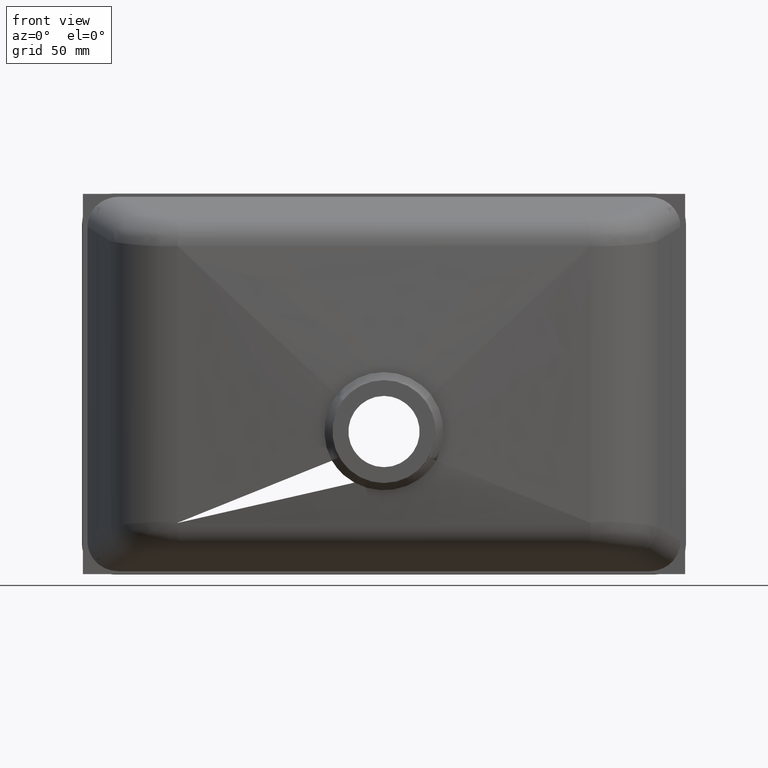
[diagram: clean part render]
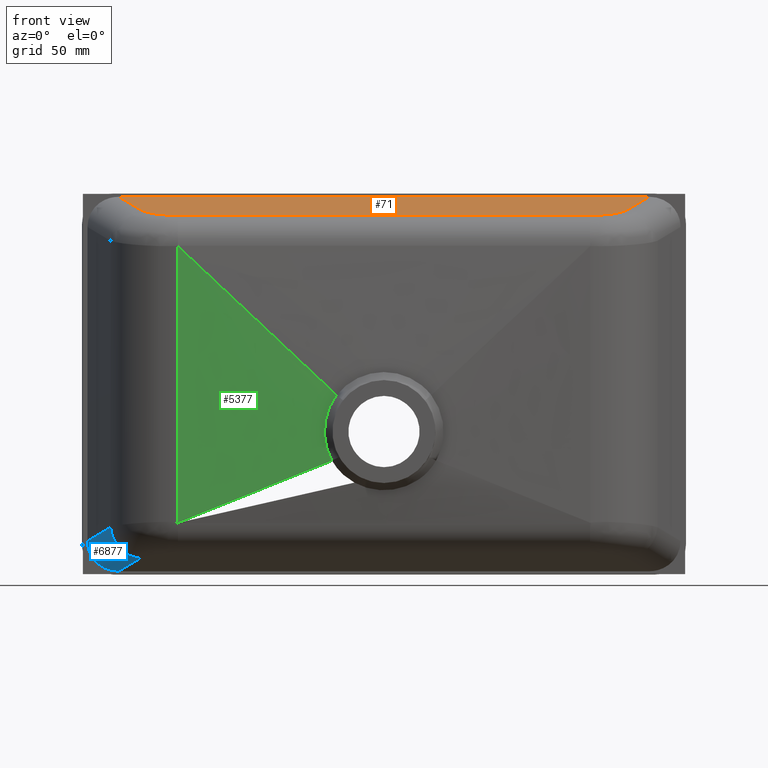
[diagram: same view with three faces highlighted in distinct colors, each labeled with its STEP entity id]
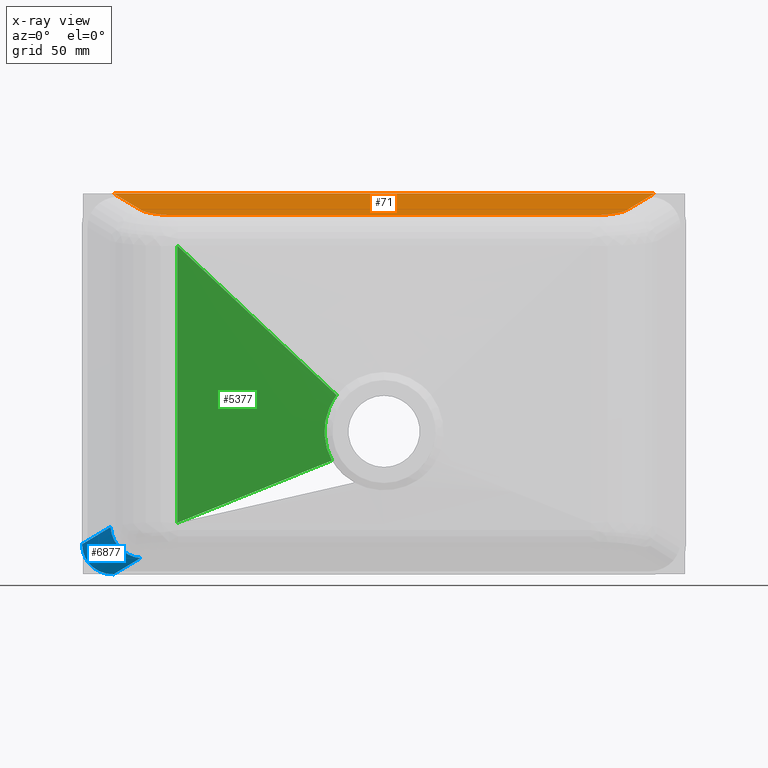
[diagram: x-ray of the same camera — body ghosted, the three highlighted faces saturated]
A machine part, front view with three faces highlighted in distinct colors.
The next image is the same camera in x-ray (body ghosted, the three faces saturated) — at least one of them is partly hidden behind the body in this view.
Their STEP definitions:

[orange] entity #71 — the highlighted planar face has unit normal (0, -0.2013, 0.9795).
#71 = ADVANCED_FACE ( 'NONE', ( #1387 ), #1925, .T. ) ;
#418 = VECTOR ( 'NONE', #5801, 1000.000000000000200 ) ;
#531 = EDGE_LOOP ( 'NONE', ( #4400, #2430, #2147, #5101, #5533, #3915 ) ) ;
#538 = VERTEX_POINT ( 'NONE', #4452 ) ;
#1123 = VECTOR ( 'NONE', #2375, 1000.000000000000000 ) ;
#1253 = CARTESIAN_POINT ( 'NONE',  ( -153.6422290650790500, -50.12531033878256200, 109.9092052092291700 ) ) ;
#1387 = FACE_OUTER_BOUND ( 'NONE', #531, .T. ) ;
#1478 = CARTESIAN_POINT ( 'NONE',  ( 179.9999999999998900, 0.0000000000000000000, 120.2089265117187900 ) ) ;
#1570 = CARTESIAN_POINT ( 'NONE',  ( 129.9907418994456500, -67.02548596699030300, 106.4365663815152200 ) ) ;
#1578 = CARTESIAN_POINT ( 'NONE',  ( 129.9907418994456500, -67.02548596699030300, 106.4365663815152200 ) ) ;
#1642 = CARTESIAN_POINT ( 'NONE',  ( -170.8084312358950600, 0.0000000000000000000, 120.2089265117187900 ) ) ;
#1709 = CARTESIAN_POINT ( 'NONE',  ( 153.6422290650790500, -50.12531033878255500, 109.9092052092291700 ) ) ;
#1737 = CARTESIAN_POINT ( 'NONE',  ( 141.0551199556728600, -67.02548596699028800, 106.4365663815152200 ) ) ;
#1827 = CARTESIAN_POINT ( 'NONE',  ( -153.6422290650790500, -50.12531033878256200, 109.9092052092291700 ) ) ;
#1889 = DIRECTION ( 'NONE',  ( 0.3180393894549257700, -0.9286750172083815300, -0.1908236336729559900 ) ) ;
#1913 = CARTESIAN_POINT ( 'NONE',  ( 150.0574483035368600, -60.59287016248549000, 107.7583367523038600 ) ) ;
#1925 = PLANE ( 'NONE',  #5288 ) ;
#2147 = ORIENTED_EDGE ( 'NONE', *, *, #5617, .F. ) ;
#2313 = LINE ( 'NONE', #2344, #3492 ) ;
#2344 = CARTESIAN_POINT ( 'NONE',  ( -134.7049165952850000, -105.4222627505811800, 98.54681772735268900 ) ) ;
#2375 = DIRECTION ( 'NONE',  ( 1.000000000000000000, -0.0000000000000000000, -0.0000000000000000000 ) ) ;
#2387 = CARTESIAN_POINT ( 'NONE',  ( 179.9999999999998900, -67.02548596699033100, 106.4365663815152200 ) ) ;
#2430 = ORIENTED_EDGE ( 'NONE', *, *, #6930, .T. ) ;
#2457 = VERTEX_POINT ( 'NONE', #1827 ) ;
#2483 = EDGE_CURVE ( 'NONE', #7166, #4834, #4914, .T. ) ;
#2872 = LINE ( 'NONE', #1478, #3059 ) ;
#2978 = CARTESIAN_POINT ( 'NONE',  ( -129.9907418994457100, -67.02548596699033100, 106.4365663815152200 ) ) ;
#3026 = CARTESIAN_POINT ( 'NONE',  ( 153.6422290650790500, -50.12531033878255500, 109.9092052092291700 ) ) ;
#3040 =( BOUNDED_CURVE ( )  B_SPLINE_CURVE ( 3, ( #5903, #7001, #3569, #1253 ),
 .UNSPECIFIED., .F., .F. ) 
 B_SPLINE_CURVE_WITH_KNOTS ( ( 4, 4 ),
 ( 0.0000000000000000000, 1.240849234648340800 ),
 .UNSPECIFIED. ) 
 CURVE ( )  GEOMETRIC_REPRESENTATION_ITEM ( )  RATIONAL_B_SPLINE_CURVE ( ( 1.000000000000000000, 0.8757544438024945600, 0.8757544438024945600, 1.000000000000000000 ) ) 
 REPRESENTATION_ITEM ( '' )  );
#3059 = VECTOR ( 'NONE', #7493, 1000.000000000000000 ) ;
#3492 = VECTOR ( 'NONE', #1889, 999.9999999999998900 ) ;
#3569 = CARTESIAN_POINT ( 'NONE',  ( -150.0574483035369400, -60.59287016248549000, 107.7583367523038600 ) ) ;
#3789 = DIRECTION ( 'NONE',  ( -1.000000000000000000, 0.0000000000000000000, 0.0000000000000000000 ) ) ;
#3915 = ORIENTED_EDGE ( 'NONE', *, *, #5379, .T. ) ;
#4096 = EDGE_CURVE ( 'NONE', #5430, #2457, #3040, .T. ) ;
#4400 = ORIENTED_EDGE ( 'NONE', *, *, #2483, .F. ) ;
#4452 = CARTESIAN_POINT ( 'NONE',  ( 170.8084312358949700, 0.0000000000000000000, 120.2089265117187700 ) ) ;
#4817 = CARTESIAN_POINT ( 'NONE',  ( 179.9999999999998900, -2.012742983495152700, 119.7953491863430600 ) ) ;
#4830 = DIRECTION ( 'NONE',  ( 0.0000000000000000000, -0.2012742983495152100, 0.9795349186343028600 ) ) ;
#4834 = VERTEX_POINT ( 'NONE', #1570 ) ;
#4914 =( BOUNDED_CURVE ( )  B_SPLINE_CURVE ( 3, ( #1709, #1913, #1737, #1578 ),
 .UNSPECIFIED., .F., .F. ) 
 B_SPLINE_CURVE_WITH_KNOTS ( ( 4, 4 ),
 ( 1.900743418941454700, 3.141592653589795300 ),
 .UNSPECIFIED. ) 
 CURVE ( )  GEOMETRIC_REPRESENTATION_ITEM ( )  RATIONAL_B_SPLINE_CURVE ( ( 1.000000000000000000, 0.8757544438024945600, 0.8757544438024945600, 1.000000000000000000 ) ) 
 REPRESENTATION_ITEM ( '' )  );
#4969 = LINE ( 'NONE', #2387, #1123 ) ;
#5101 = ORIENTED_EDGE ( 'NONE', *, *, #6268, .T. ) ;
#5288 = AXIS2_PLACEMENT_3D ( 'NONE', #4817, #4830, #3789 ) ;
#5379 = EDGE_CURVE ( 'NONE', #5430, #4834, #4969, .T. ) ;
#5430 = VERTEX_POINT ( 'NONE', #2978 ) ;
#5533 = ORIENTED_EDGE ( 'NONE', *, *, #4096, .F. ) ;
#5617 = EDGE_CURVE ( 'NONE', #6306, #538, #2872, .T. ) ;
#5801 = DIRECTION ( 'NONE',  ( 0.3180393894549249900, 0.9286750172083816400, 0.1908236336729560400 ) ) ;
#5903 = CARTESIAN_POINT ( 'NONE',  ( -129.9907418994457100, -67.02548596699033100, 106.4365663815152200 ) ) ;
#5948 = CARTESIAN_POINT ( 'NONE',  ( 157.7669007351134400, -38.08126906228216800, 112.3840082112498100 ) ) ;
#6268 = EDGE_CURVE ( 'NONE', #6306, #2457, #2313, .T. ) ;
#6306 = VERTEX_POINT ( 'NONE', #1642 ) ;
#6930 = EDGE_CURVE ( 'NONE', #7166, #538, #7484, .T. ) ;
#7001 = CARTESIAN_POINT ( 'NONE',  ( -141.0551199556729200, -67.02548596699028800, 106.4365663815152200 ) ) ;
#7166 = VERTEX_POINT ( 'NONE', #3026 ) ;
#7484 = LINE ( 'NONE', #5948, #418 ) ;
#7493 = DIRECTION ( 'NONE',  ( 1.000000000000000000, 0.0000000000000000000, 0.0000000000000000000 ) ) ;

[blue] entity #6877 — the highlighted cylindrical surface (edge-blend (fillet) strip) has radius 20 mm, axis along (0.318, -0.9287, 0.1908).
#405 = CARTESIAN_POINT ( 'NONE',  ( -172.5634187975858000, -52.57968386922608100, -90.31850683654312200 ) ) ;
#1061 = AXIS2_PLACEMENT_3D ( 'NONE', #6996, #6988, #6945 ) ;
#1542 = VERTEX_POINT ( 'NONE', #6551 ) ;
#1593 = LINE ( 'NONE', #6652, #5429 ) ;
#1900 = ORIENTED_EDGE ( 'NONE', *, *, #1901, .F. ) ;
#1901 = EDGE_CURVE ( 'NONE', #3113, #4057, #4312, .T. ) ;
#2018 = CARTESIAN_POINT ( 'NONE',  ( -190.5701598486906500, 0.0000000000000000000, -101.1225514672059800 ) ) ;
#2287 = VECTOR ( 'NONE', #4812, 1000.000000000000000 ) ;
#2665 = VERTEX_POINT ( 'NONE', #405 ) ;
#2769 = ORIENTED_EDGE ( 'NONE', *, *, #2868, .T. ) ;
#2833 = CARTESIAN_POINT ( 'NONE',  ( -170.8084312358950900, 0.0000000000000000000, -120.2089265117187000 ) ) ;
#2868 = EDGE_CURVE ( 'NONE', #1542, #2665, #4918, .T. ) ;
#2944 = EDGE_CURVE ( 'NONE', #1542, #3113, #6982, .T. ) ;
#3113 = VERTEX_POINT ( 'NONE', #2833 ) ;
#3135 = CYLINDRICAL_SURFACE ( 'NONE', #5604, 20.00000000000000400 ) ;
#4057 = VERTEX_POINT ( 'NONE', #2018 ) ;
#4308 = ORIENTED_EDGE ( 'NONE', *, *, #6721, .F. ) ;
#4312 =( BOUNDED_CURVE ( )  B_SPLINE_CURVE ( 3, ( #6144, #6254, #6264, #6066 ),
 .UNSPECIFIED., .F., .F. ) 
 B_SPLINE_CURVE_WITH_KNOTS ( ( 4, 4 ),
 ( 2.144412147304608500, 3.649950707746345600 ),
 .UNSPECIFIED. ) 
 CURVE ( )  GEOMETRIC_REPRESENTATION_ITEM ( )  RATIONAL_B_SPLINE_CURVE ( ( 1.000000000000000000, 0.8198656112821916000, 0.8198656112821916000, 1.000000000000000000 ) ) 
 REPRESENTATION_ITEM ( '' )  );
#4812 = DIRECTION ( 'NONE',  ( -0.3180393894549258800, 0.9286750172083817500, -0.1908236336729543000 ) ) ;
#4877 = CARTESIAN_POINT ( 'NONE',  ( -157.7669007351136400, -38.08126906228182700, -112.3840082112498800 ) ) ;
#4918 = CIRCLE ( 'NONE', #1061, 20.00000000000000400 ) ;
#5372 = ORIENTED_EDGE ( 'NONE', *, *, #2944, .F. ) ;
#5429 = VECTOR ( 'NONE', #6618, 1000.000000000000000 ) ;
#5604 = AXIS2_PLACEMENT_3D ( 'NONE', #6079, #6157, #6122 ) ;
#5621 = FACE_OUTER_BOUND ( 'NONE', #6951, .T. ) ;
#6066 = CARTESIAN_POINT ( 'NONE',  ( -190.5701598486906500, 0.0000000000000000000, -101.1225514672059800 ) ) ;
#6079 = CARTESIAN_POINT ( 'NONE',  ( -157.7669007351136100, -34.05578309529154500, -92.79330983856380000 ) ) ;
#6122 = DIRECTION ( 'NONE',  ( 0.9460594866253349000, 0.3239929748716906000, 0.0000000000000000000 ) ) ;
#6144 = CARTESIAN_POINT ( 'NONE',  ( -170.8084312358950900, 0.0000000000000000000, -120.2089265117187000 ) ) ;
#6157 = DIRECTION ( 'NONE',  ( 0.3180393894549258800, -0.9286750172083817500, 0.1908236336729543000 ) ) ;
#6254 = CARTESIAN_POINT ( 'NONE',  ( -182.5356200652375100, 0.0000000000000000000, -120.2089265117187000 ) ) ;
#6264 = CARTESIAN_POINT ( 'NONE',  ( -190.5701598486906200, 0.0000000000000000000, -112.4489656994975100 ) ) ;
#6551 = CARTESIAN_POINT ( 'NONE',  ( -153.6422290650791100, -50.12531033878254800, -109.9092052092292000 ) ) ;
#6618 = DIRECTION ( 'NONE',  ( 0.3180393894549258800, -0.9286750172083817500, 0.1908236336729543000 ) ) ;
#6652 = CARTESIAN_POINT ( 'NONE',  ( -176.6880904676203000, -40.53564259272536000, -92.79330983856380000 ) ) ;
#6721 = EDGE_CURVE ( 'NONE', #4057, #2665, #1593, .T. ) ;
#6877 = ADVANCED_FACE ( 'NONE', ( #5621 ), #3135, .T. ) ;
#6945 = DIRECTION ( 'NONE',  ( 0.9460594866253349000, 0.3239929748716906000, 0.0000000000000000000 ) ) ;
#6951 = EDGE_LOOP ( 'NONE', ( #5372, #2769, #4308, #1900 ) ) ;
#6982 = LINE ( 'NONE', #4877, #2287 ) ;
#6988 = DIRECTION ( 'NONE',  ( -0.3180393894549258800, 0.9286750172083817500, -0.1908236336729543000 ) ) ;
#6996 = CARTESIAN_POINT ( 'NONE',  ( -153.6422290650791100, -46.09982437179227300, -90.31850683654312200 ) ) ;

[green] entity #5377 — the highlighted face is a freeform B-spline surface patch.
#40 = CARTESIAN_POINT ( 'NONE',  ( -49.36036230898248800, -88.27211485755015000, -25.26486910687930600 ) ) ;
#48 = CARTESIAN_POINT ( 'NONE',  ( -42.64635142295497900, -88.54240152632704100, -49.46402000906326900 ) ) ;
#51 = CARTESIAN_POINT ( 'NONE',  ( -97.51509168865591400, -85.06820101402996700, -70.83844907707114700 ) ) ;
#58 = CARTESIAN_POINT ( 'NONE',  ( -130.4109658530076700, -82.99332521947326300, 87.28023008315145100 ) ) ;
#65 = CARTESIAN_POINT ( 'NONE',  ( -45.25866659644316300, -88.53923180520936900, -26.18376566408759800 ) ) ;
#76 = CARTESIAN_POINT ( 'NONE',  ( -38.41578860327147300, -88.80969778148207200, -48.03981590693967300 ) ) ;
#80 = CARTESIAN_POINT ( 'NONE',  ( -80.56553446002249100, -86.13717382911136200, -64.59693473347407200 ) ) ;
#85 = CARTESIAN_POINT ( 'NONE',  ( -130.3545395925023100, -82.99687381877808400, 87.14100860427016900 ) ) ;
#91 = EDGE_LOOP ( 'NONE', ( #359, #2841, #2848, #6350, #4591, #2965, #7017 ) ) ;
#92 = CARTESIAN_POINT ( 'NONE',  ( -55.33401709543948500, -87.74052731731646300, -53.74843320207285300 ) ) ;
#105 = CARTESIAN_POINT ( 'NONE',  ( -72.09075584570577200, -86.67166023665205900, -61.47617756167553400 ) ) ;
#126 = CARTESIAN_POINT ( 'NONE',  ( -63.61508188307536900, -87.20619044413591300, -58.35785065827693100 ) ) ;
#141 = CARTESIAN_POINT ( 'NONE',  ( -130.6420741295679300, -82.97879245020458000, -87.49789445536106300 ) ) ;
#173 = CARTESIAN_POINT ( 'NONE',  ( -55.13622171664886900, -87.74078768621932100, -55.24815699358003200 ) ) ;
#185 = CARTESIAN_POINT ( 'NONE',  ( -36.95139551235215700, -89.07456709628498000, -22.05423532638754800 ) ) ;
#188 = CARTESIAN_POINT ( 'NONE',  ( -41.15697088390383100, -88.80634875286858700, -27.10266222129589100 ) ) ;
#201 = CARTESIAN_POINT ( 'NONE',  ( -50.89679163343561900, -88.00808630726102400, -53.69331016123158000 ) ) ;
#214 = CARTESIAN_POINT ( 'NONE',  ( -37.05539679541504200, -89.07345785129859900, -28.02198824323327000 ) ) ;
#216 = CARTESIAN_POINT ( 'NONE',  ( -130.4831164520913100, -82.98878839881645300, -87.17165077775447900 ) ) ;
#230 = CARTESIAN_POINT ( 'NONE',  ( -46.65655614357788700, -88.27540361112174600, -52.14064593028037100 ) ) ;
#254 = CARTESIAN_POINT ( 'NONE',  ( -38.17241411991277300, -88.81004371476396400, -49.04525217092679400 ) ) ;
#274 = CARTESIAN_POINT ( 'NONE',  ( -33.92875695917139500, -89.07738954999437900, -47.50185177599787800 ) ) ;
#282 = CARTESIAN_POINT ( 'NONE',  ( -130.3245751935998300, -82.99876170887053200, 86.84600936626404200 ) ) ;
#289 = CARTESIAN_POINT ( 'NONE',  ( -32.95419999505112000, -89.34054280487922000, -28.94264644656535200 ) ) ;
#293 = CARTESIAN_POINT ( 'NONE',  ( -130.3245391098189400, -82.99876197656605800, 86.99650877902060100 ) ) ;
#302 = CARTESIAN_POINT ( 'NONE',  ( -29.67997936384394100, -89.34458132663448300, -45.97228087129367000 ) ) ;
#326 = CARTESIAN_POINT ( 'NONE',  ( -42.01907252854345400, -88.54631221144306600, 4.517574215570913800 ) ) ;
#354 = CARTESIAN_POINT ( 'NONE',  ( -131.4059510144070700, -82.93064220179455500, -84.27640618597995100 ) ) ;
#359 = ORIENTED_EDGE ( 'NONE', *, *, #1719, .T. ) ;
#368 = CARTESIAN_POINT ( 'NONE',  ( -131.4014424996303800, -82.92935391644006400, -14.36802543146416700 ) ) ;
#373 = B_SPLINE_CURVE_WITH_KNOTS ( 'NONE', 3,
 ( #994, #6974, #5262, #7169, #4917, #4823, #7182, #7012, #5658, #4754, #5147, #5058, #1952 ),
 .UNSPECIFIED., .F., .F.,
 ( 4, 3, 3, 3, 4 ),
 ( 0.1831539900320139400, 0.2249999998619538800, 0.2700000003847085100, 0.3150000005958088500, 0.3568460109279347800 ),
 .UNSPECIFIED. ) ;
#386 = CARTESIAN_POINT ( 'NONE',  ( -114.4498476749875900, -83.99941553946658200, -77.89862921665051900 ) ) ;
#395 = CARTESIAN_POINT ( 'NONE',  ( -97.49309602862571500, -85.06823631769134400, -71.52258171659791200 ) ) ;
#407 = CARTESIAN_POINT ( 'NONE',  ( -80.53237937951227800, -86.13721923007162200, -65.15709003339654300 ) ) ;
#416 = CARTESIAN_POINT ( 'NONE',  ( -72.05202105495557400, -86.67171068626176100, -61.97434419179585100 ) ) ;
#439 = CARTESIAN_POINT ( 'NONE',  ( -63.57074405554031000, -87.20624713555633900, -58.79404533736634200 ) ) ;
#442 = CARTESIAN_POINT ( 'NONE',  ( -114.9794689326343600, -83.99793203911936200, -17.08446190155806100 ) ) ;
#447 = CARTESIAN_POINT ( 'NONE',  ( -32.84270033586523100, -89.34186718167190100, -23.67930865315434700 ) ) ;
#450 = CARTESIAN_POINT ( 'NONE',  ( -98.55756565629700100, -85.06650578097729500, -19.80126257872496600 ) ) ;
#454 = CARTESIAN_POINT ( 'NONE',  ( -98.58162165633719100, -85.06654949096750300, -3.149463038052632900 ) ) ;
#462 = CARTESIAN_POINT ( 'NONE',  ( -55.08619898881779200, -87.74085322883006200, -55.62243613542779000 ) ) ;
#467 = VERTEX_POINT ( 'NONE', #938 ) ;
#473 = CARTESIAN_POINT ( 'NONE',  ( -82.13608779179718100, -86.13504919705681600, -22.52026045008739500 ) ) ;
#483 = FACE_OUTER_BOUND ( 'NONE', #91, .T. ) ;
#489 = CARTESIAN_POINT ( 'NONE',  ( -114.9915292644939900, -83.99793275226220100, 2.425301489970319100 ) ) ;
#490 = CARTESIAN_POINT ( 'NONE',  ( -50.84392645545654000, -88.00815627546691600, -54.03663153445851500 ) ) ;
#507 = CARTESIAN_POINT ( 'NONE',  ( -46.60082779900118800, -88.27547869392172700, -52.45302385661759100 ) ) ;
#529 = CARTESIAN_POINT ( 'NONE',  ( -42.35584692782950400, -88.54280472185092800, -50.87441477582427000 ) ) ;
#539 = CARTESIAN_POINT ( 'NONE',  ( -73.92534885954727000, -86.66932090509656900, -23.87975938576860800 ) ) ;
#543 = CARTESIAN_POINT ( 'NONE',  ( -32.84579645588647200, -89.12388106382444200, -48.36612582690006000 ) ) ;
#555 = CARTESIAN_POINT ( 'NONE',  ( -38.11086605665781900, -88.81013074978012900, -49.29580569503095700 ) ) ;
#600 = CARTESIAN_POINT ( 'NONE',  ( -33.86425837563951500, -89.07748369439036700, -47.72152093073869800 ) ) ;
#625 = CARTESIAN_POINT ( 'NONE',  ( -29.61240214310835500, -89.34468222648477800, -46.16114711014056800 ) ) ;
#660 = CARTESIAN_POINT ( 'NONE',  ( -65.71470874519326300, -87.20358578294886300, -25.23976911434287700 ) ) ;
#682 = CARTESIAN_POINT ( 'NONE',  ( -57.50441706757281700, -87.73782394239241000, -26.60157491616810400 ) ) ;
#693 = CARTESIAN_POINT ( 'NONE',  ( -131.4060589820115900, -82.93066782595300900, -85.20865466821773300 ) ) ;
#706 = CARTESIAN_POINT ( 'NONE',  ( -53.39927122876260100, -88.00494302211419000, -27.28247781708071800 ) ) ;
#717 = CARTESIAN_POINT ( 'NONE',  ( -114.4387859126260700, -83.99944557176357300, -78.70667239351141100 ) ) ;
#739 = CARTESIAN_POINT ( 'NONE',  ( -97.47084773778696800, -85.06827190453054800, -72.20643163640552600 ) ) ;
#784 = CARTESIAN_POINT ( 'NONE',  ( -98.12853484668572400, -85.02252191605919100, -74.72456423342895000 ) ) ;
#814 = CARTESIAN_POINT ( 'NONE',  ( -80.49884352973130300, -86.13726497245102100, -65.71681594164994100 ) ) ;
#825 = CARTESIAN_POINT ( 'NONE',  ( -49.29421352710874500, -88.27205539150388300, -27.96383513322795300 ) ) ;
#850 = CARTESIAN_POINT ( 'NONE',  ( -45.18935528005415800, -88.53915142180630900, -28.64621853557476100 ) ) ;
#893 = CARTESIAN_POINT ( 'NONE',  ( -130.8015817941394500, -82.96876757560619400, -87.82463323830022300 ) ) ;
#914 = CARTESIAN_POINT ( 'NONE',  ( -72.01284142570347100, -86.67176150641127200, -62.47200809427215500 ) ) ;
#924 = CARTESIAN_POINT ( 'NONE',  ( -63.52589713782287400, -87.20630423281599500, -59.22966353858581100 ) ) ;
#929 = CARTESIAN_POINT ( 'NONE',  ( -131.4016364399897700, -82.92942232418212700, -21.82426685073079800 ) ) ;
#938 = CARTESIAN_POINT ( 'NONE',  ( -29.82647349194038400, -89.31158232420492000, -6.978132939088495400 ) ) ;
#940 = CARTESIAN_POINT ( 'NONE',  ( -55.03560237190213700, -87.74091922236860300, -55.99606347493392600 ) ) ;
#952 = CARTESIAN_POINT ( 'NONE',  ( -50.79045498894176800, -88.00822671714489300, -54.37926344310798800 ) ) ;
#954 = CARTESIAN_POINT ( 'NONE',  ( -114.9527136563264200, -83.99800395193831500, -23.58472727513529300 ) ) ;
#960 = CARTESIAN_POINT ( 'NONE',  ( -82.17138299856023300, -86.13518770140326800, -8.723057623684354700 ) ) ;
#963 = CARTESIAN_POINT ( 'NONE',  ( -98.50384864873875300, -85.06658239412061600, -25.34573019032333000 ) ) ;
#966 = CARTESIAN_POINT ( 'NONE',  ( -46.54446062611783900, -88.27555427527359200, -52.76467426005625300 ) ) ;
#976 = CARTESIAN_POINT ( 'NONE',  ( -42.29653708178184200, -88.54288630641573800, -51.15511397328040700 ) ) ;
#984 = CARTESIAN_POINT ( 'NONE',  ( -82.05533442625221600, -86.13513042257960700, -27.11003354633621900 ) ) ;
#994 = CARTESIAN_POINT ( 'NONE',  ( -130.3245751935998300, -82.99876170887053200, 86.84600936626404200 ) ) ;
#1003 = CARTESIAN_POINT ( 'NONE',  ( -38.04861353744583100, -88.81021833755789900, -49.54555368650456900 ) ) ;
#1004 = CARTESIAN_POINT ( 'NONE',  ( -73.83107731500895500, -86.66940443680908900, -27.99218522434266300 ) ) ;
#1015 = CARTESIAN_POINT ( 'NONE',  ( -65.60690162263179600, -87.20367203451580500, -28.87510255953205300 ) ) ;
#1030 = CARTESIAN_POINT ( 'NONE',  ( -33.79902225869302200, -89.07757842078415000, -47.94034475463326600 ) ) ;
#1041 = CARTESIAN_POINT ( 'NONE',  ( -57.38301380047033000, -87.73790911978686300, -29.76073176209427400 ) ) ;
#1067 = CARTESIAN_POINT ( 'NONE',  ( -53.27106988938960800, -88.00502766242239300, -30.20354636337538800 ) ) ;
#1106 = CARTESIAN_POINT ( 'NONE',  ( -29.54405373242459400, -89.34478373595132400, -46.34912540638875100 ) ) ;
#1116 = CARTESIAN_POINT ( 'NONE',  ( -49.15919878017285100, -88.27213864057861800, -30.64704669865373200 ) ) ;
#1133 = CARTESIAN_POINT ( 'NONE',  ( -63.48056057976596400, -87.20636168085636100, -59.66469433834635100 ) ) ;
#1158 = B_SPLINE_CURVE_WITH_KNOTS ( 'NONE', 3,
 ( #1577, #216, #141, #893 ),
 .UNSPECIFIED., .F., .F.,
 ( 4, 4 ),
 ( 0.0000000000000000000, 1.000000000000000000 ),
 .UNSPECIFIED. ) ;
#1163 = CARTESIAN_POINT ( 'NONE',  ( -131.4061689476325200, -82.93069365485970900, -86.14090998267661800 ) ) ;
#1171 = CARTESIAN_POINT ( 'NONE',  ( -29.85083807397802100, -89.31091999928146700, -7.007321703299470400 ) ) ;
#1180 = CARTESIAN_POINT ( 'NONE',  ( -45.04749277124162200, -88.53922895384350500, -31.09210427701849300 ) ) ;
#1193 = CARTESIAN_POINT ( 'NONE',  ( -34.18380122688108700, -89.07701529525269300, -46.61979378683408700 ) ) ;
#1197 = CARTESIAN_POINT ( 'NONE',  ( -114.4276036952198700, -83.99947583133398200, -79.51457504696793400 ) ) ;
#1231 = CARTESIAN_POINT ( 'NONE',  ( -40.93578676231039300, -88.80631926710839300, -31.53716185538325000 ) ) ;
#1244 = EDGE_CURVE ( 'NONE', #4170, #1749, #1158, .T. ) ;
#1273 = CARTESIAN_POINT ( 'NONE',  ( -97.44835641123702900, -85.06830774726563500, -72.88999340216078300 ) ) ;
#1286 = CARTESIAN_POINT ( 'NONE',  ( -36.82422387787716600, -89.07339371874849100, -31.98356815131319700 ) ) ;
#1295 = CARTESIAN_POINT ( 'NONE',  ( -29.94720358471087700, -89.34418015929554700, -45.21326407632726300 ) ) ;
#1301 = CARTESIAN_POINT ( 'NONE',  ( -80.46494142040336300, -86.13731101585341300, -66.27610427641539600 ) ) ;
#1304 = CARTESIAN_POINT ( 'NONE',  ( -130.4109658530076700, -82.99332521947326300, 87.28023008315145100 ) ) ;
#1324 = CARTESIAN_POINT ( 'NONE',  ( -73.96626366967176100, -86.66950680662115800, -11.50985491650021300 ) ) ;
#1325 = CARTESIAN_POINT ( 'NONE',  ( -50.73640053633302200, -88.00829755814280000, -54.72119298330383000 ) ) ;
#1329 = CARTESIAN_POINT ( 'NONE',  ( -125.3267101445739700, -83.31299686156322100, 82.51131775670712900 ) ) ;
#1341 = CARTESIAN_POINT ( 'NONE',  ( -120.2425329241319500, -83.63265024633820100, 77.74232052569489300 ) ) ;
#1349 = CARTESIAN_POINT ( 'NONE',  ( -130.4109658530076700, -82.99332521947326300, 87.28023008315145100 ) ) ;
#1356 = CARTESIAN_POINT ( 'NONE',  ( -115.1584657899763300, -83.95227906906536900, 72.97320429353088400 ) ) ;
#1365 = CARTESIAN_POINT ( 'NONE',  ( -32.71311835941502000, -89.34039669135273700, -32.43429702125084200 ) ) ;
#1368 = CARTESIAN_POINT ( 'NONE',  ( -103.0023751908305600, -84.71651699603269500, 61.57016663366903900 ) ) ;
#1374 = EDGE_CURVE ( 'NONE', #467, #2376, #7301, .T. ) ;
#1409 = CARTESIAN_POINT ( 'NONE',  ( -46.48747923332049200, -88.27563027349016500, -53.07558358816177700 ) ) ;
#1420 = CARTESIAN_POINT ( 'NONE',  ( -131.4018303803492000, -82.92949073192419000, -29.28050826999742600 ) ) ;
#1434 = CARTESIAN_POINT ( 'NONE',  ( -65.76106710327603400, -87.20383092839486500, -14.29637924709213200 ) ) ;
#1435 = CARTESIAN_POINT ( 'NONE',  ( -42.23658155507735800, -88.54296832499606800, -51.43503248076294200 ) ) ;
#1451 = CARTESIAN_POINT ( 'NONE',  ( -114.9259583800184900, -83.99807586475728300, -30.08499264871252500 ) ) ;
#1453 = CARTESIAN_POINT ( 'NONE',  ( -90.84682282031586500, -85.48062629022460600, 50.16654637254087100 ) ) ;
#1460 = CARTESIAN_POINT ( 'NONE',  ( -37.98568387683420900, -88.81030637650197000, -49.79448137336410700 ) ) ;
#1491 = CARTESIAN_POINT ( 'NONE',  ( -98.45013164118049100, -85.06665900726392200, -30.89019780192169800 ) ) ;
#1492 = CARTESIAN_POINT ( 'NONE',  ( -78.69285490615085600, -86.24443281824187600, 38.76121736961034300 ) ) ;
#1504 = CARTESIAN_POINT ( 'NONE',  ( -33.73307731829157100, -89.07767361556653900, -48.15830789192811800 ) ) ;
#1529 = CARTESIAN_POINT ( 'NONE',  ( -29.47496435804318400, -89.34488572291370200, -46.53619998016627300 ) ) ;
#1539 = CARTESIAN_POINT ( 'NONE',  ( -69.09631105567025600, -86.84752004795704700, 29.75578468468290800 ) ) ;
#1545 = CARTESIAN_POINT ( 'NONE',  ( -81.97458106070726600, -86.13521164810238400, -31.69980664258504500 ) ) ;
#1548 = CARTESIAN_POINT ( 'NONE',  ( -131.4062789132534600, -82.93071948376639600, -87.07316529713551700 ) ) ;
#1558 = CARTESIAN_POINT ( 'NONE',  ( -114.4164214778136700, -83.99950609090437600, -80.32247770042445700 ) ) ;
#1577 = CARTESIAN_POINT ( 'NONE',  ( -130.3246131721513700, -82.99876142710221000, -86.84600939842941600 ) ) ;
#1582 = CARTESIAN_POINT ( 'NONE',  ( -97.42586508468708900, -85.06834359000072300, -73.57355516791602700 ) ) ;
#1610 = CARTESIAN_POINT ( 'NONE',  ( -80.43103931107542300, -86.13735705925579100, -66.83539261118085100 ) ) ;
#1614 = CARTESIAN_POINT ( 'NONE',  ( -36.97981193581085800, -89.07332994042676000, -30.01187743033898100 ) ) ;
#1617 = EDGE_CURVE ( 'NONE', #5699, #4170, #373, .T. ) ;
#1621 = CARTESIAN_POINT ( 'NONE',  ( -53.24380017628790500, -88.00604868335989300, -12.61970500937832200 ) ) ;
#1635 = CARTESIAN_POINT ( 'NONE',  ( -57.35816689834547300, -87.73881373916569300, -10.75133022696724300 ) ) ;
#1636 = CARTESIAN_POINT ( 'NONE',  ( -71.93362642426959000, -86.67186379388331800, -63.46631133281327700 ) ) ;
#1671 = CARTESIAN_POINT ( 'NONE',  ( -131.4058450438301400, -82.93061679758986300, -83.34416440701613700 ) ) ;
#1679 = CARTESIAN_POINT ( 'NONE',  ( -63.43522402170906100, -87.20641912889674100, -60.09972513810688400 ) ) ;
#1701 = CARTESIAN_POINT ( 'NONE',  ( -54.93330539638586900, -87.74105197572603700, -56.74199006170208300 ) ) ;
#1706 = CARTESIAN_POINT ( 'NONE',  ( -59.50062583876588500, -87.45041442148649900, 20.74942322130994700 ) ) ;
#1715 = CARTESIAN_POINT ( 'NONE',  ( -73.73680577047065300, -86.66948796852160800, -32.10461106291671700 ) ) ;
#1719 = EDGE_CURVE ( 'NONE', #1749, #2797, #2408, .T. ) ;
#1749 = VERTEX_POINT ( 'NONE', #6662 ) ;
#1753 = CARTESIAN_POINT ( 'NONE',  ( -131.4056331026763200, -82.93056598918049400, -81.47968084908851000 ) ) ;
#1758 = CARTESIAN_POINT ( 'NONE',  ( -57.55560235744951600, -87.73817238262137200, -17.08195583720259900 ) ) ;
#1759 = CARTESIAN_POINT ( 'NONE',  ( -50.68234608372427600, -88.00836839914069300, -55.06312252349967200 ) ) ;
#1764 = CARTESIAN_POINT ( 'NONE',  ( -49.90788308052218300, -88.05293520239153800, 11.73990375541485600 ) ) ;
#1773 = CARTESIAN_POINT ( 'NONE',  ( -65.49909450007031400, -87.20375828608274600, -32.51043600472122800 ) ) ;
#1795 = CARTESIAN_POINT ( 'NONE',  ( -57.26161053336785000, -87.73799429718131600, -32.91988860802045000 ) ) ;
#1809 = CARTESIAN_POINT ( 'NONE',  ( -44.72326616217391400, -88.37858131978086400, 6.870503186018171800 ) ) ;
#1837 = CARTESIAN_POINT ( 'NONE',  ( -39.53950226698763300, -88.70410379398677500, 2.000185287258355400 ) ) ;
#1862 = CARTESIAN_POINT ( 'NONE',  ( -34.35778774433271100, -89.02955194728959000, -2.872316944065254100 ) ) ;
#1888 = CARTESIAN_POINT ( 'NONE',  ( -32.87147185689060800, -89.12290304926131100, -4.269938801917592600 ) ) ;
#1896 = CARTESIAN_POINT ( 'NONE',  ( -51.10582721943487200, -88.00780832580937800, -52.31726679206727900 ) ) ;
#1909 = CARTESIAN_POINT ( 'NONE',  ( -46.43049784052314500, -88.27570627170675300, -53.38649291626730800 ) ) ;
#1938 = CARTESIAN_POINT ( 'NONE',  ( -42.17662602837286600, -88.54305034357639700, -51.71495098824547700 ) ) ;
#1943 = CARTESIAN_POINT ( 'NONE',  ( -29.89943191756554000, -89.30960065038026100, -7.065812129858119100 ) ) ;
#1949 = CARTESIAN_POINT ( 'NONE',  ( -53.14286855001661500, -88.00511230273059500, -33.12461490967005100 ) ) ;
#1951 = CARTESIAN_POINT ( 'NONE',  ( -31.38533320231417500, -89.21624950214943800, -5.667749492436140500 ) ) ;
#1952 = CARTESIAN_POINT ( 'NONE',  ( -130.3246131721513700, -82.99876142710221000, -86.84600939842941600 ) ) ;
#1965 = CARTESIAN_POINT ( 'NONE',  ( -37.92275421622258600, -88.81039441544605500, -50.04340906022364500 ) ) ;
#1989 = CARTESIAN_POINT ( 'NONE',  ( -33.66713237789012700, -89.07776881034892800, -48.37627102922297000 ) ) ;
#1998 = CARTESIAN_POINT ( 'NONE',  ( -49.02418403323696300, -88.27222188965335200, -33.33025826407951800 ) ) ;
#2010 = CARTESIAN_POINT ( 'NONE',  ( -54.98445388414400300, -87.74098559904732000, -56.36902676831800100 ) ) ;
#2020 = CARTESIAN_POINT ( 'NONE',  ( -44.90563026242907800, -88.53930648588070100, -33.53799001846223100 ) ) ;
#2052 = CARTESIAN_POINT ( 'NONE',  ( -40.78707649162120000, -88.80639108210803600, -33.74572177284493800 ) ) ;
#2073 = CARTESIAN_POINT ( 'NONE',  ( -36.66863581994348200, -89.07345749707022300, -33.95525887228740200 ) ) ;
#2085 = CARTESIAN_POINT ( 'NONE',  ( -29.40587498366177500, -89.34498770987607900, -46.72327455394379600 ) ) ;
#2124 = CARTESIAN_POINT ( 'NONE',  ( -131.4063900456659200, -82.93074558816925900, -88.00543013767558900 ) ) ;
#2146 = CARTESIAN_POINT ( 'NONE',  ( -114.4051308807513600, -83.99953543125005200, -81.13018473637943400 ) ) ;
#2157 = CARTESIAN_POINT ( 'NONE',  ( -97.40315979885275500, -85.06837694683439100, -74.25670553284318500 ) ) ;
#2167 = CARTESIAN_POINT ( 'NONE',  ( -80.39684990609876500, -86.13739830171469700, -67.39396908174060700 ) ) ;
#2171 = CARTESIAN_POINT ( 'NONE',  ( -32.55055904466026100, -89.34043061778867000, -34.17061655988153000 ) ) ;
#2178 = CARTESIAN_POINT ( 'NONE',  ( -131.4021304614033200, -82.92959245112552900, -36.73689752536650100 ) ) ;
#2193 = CARTESIAN_POINT ( 'NONE',  ( -71.89369495972178500, -86.67190897915486400, -63.96260085618932600 ) ) ;
#2210 = CARTESIAN_POINT ( 'NONE',  ( -63.38953383932049900, -87.20646916781980500, -60.53372512209065100 ) ) ;
#2230 = CARTESIAN_POINT ( 'NONE',  ( -54.88180418922068100, -87.74110979079267700, -57.11367424978237800 ) ) ;
#2252 = CARTESIAN_POINT ( 'NONE',  ( -50.62793936417076400, -88.00843010227910700, -55.40364881362824400 ) ) ;
#2289 = CARTESIAN_POINT ( 'NONE',  ( -114.8857733603330900, -83.99819014416715400, -36.58221745614888200 ) ) ;
#2303 = CARTESIAN_POINT ( 'NONE',  ( -46.37317224981872200, -88.27577259208932500, -53.69585500238983400 ) ) ;
#2329 = CARTESIAN_POINT ( 'NONE',  ( -114.4826572310040100, -83.99932618614532500, -75.47408607296857500 ) ) ;
#2336 = CARTESIAN_POINT ( 'NONE',  ( -42.11635425105630800, -88.54312295223337500, -51.99312688221784400 ) ) ;
#2376 = VERTEX_POINT ( 'NONE', #3302 ) ;
#2377 = CARTESIAN_POINT ( 'NONE',  ( -98.36941671155736300, -85.06678930900082500, -36.42842591467484700 ) ) ;
#2388 = CARTESIAN_POINT ( 'NONE',  ( -37.85953625229389300, -88.81047331237742500, -50.29039876204584700 ) ) ;
#2408 = B_SPLINE_CURVE_WITH_KNOTS ( 'NONE', 3,
 ( #7160, #6302, #784, #6936, #4722, #4899, #3844, #7259 ),
 .UNSPECIFIED., .F., .F.,
 ( 4, 2, 2, 4 ),
 ( 0.4800132227650821800, 0.5329051336716033000, 0.5593510891248637500, 0.5857970445781243200 ),
 .UNSPECIFIED. ) ;
#2428 = CARTESIAN_POINT ( 'NONE',  ( -81.85306164490977200, -86.13536878298472700, -36.28008617325577500 ) ) ;
#2444 = CARTESIAN_POINT ( 'NONE',  ( -33.60094278293871600, -89.07785526896714100, -48.59205998864587900 ) ) ;
#2456 = CARTESIAN_POINT ( 'NONE',  ( -97.35548803729557200, -85.06899485995930400, 57.53239295490804000 ) ) ;
#2470 = CARTESIAN_POINT ( 'NONE',  ( -29.33665026838014000, -89.34508714861543400, -46.90777061542313900 ) ) ;
#2492 = CARTESIAN_POINT ( 'NONE',  ( -131.4065015098953500, -82.93077152881790000, -88.93769294639591300 ) ) ;
#2494 = VERTEX_POINT ( 'NONE', #1349 ) ;
#2504 = CARTESIAN_POINT ( 'NONE',  ( -131.4067701155865400, -82.93077810917407100, 90.02620411467869100 ) ) ;
#2507 = CARTESIAN_POINT ( 'NONE',  ( -73.59488411158595500, -86.66965851997666400, -36.20591630254623500 ) ) ;
#2522 = CARTESIAN_POINT ( 'NONE',  ( -114.3938831533553200, -83.99956445103060800, -81.93793359391709400 ) ) ;
#2533 = CARTESIAN_POINT ( 'NONE',  ( -65.33670701477466000, -87.20394537721337300, -36.13300849090529700 ) ) ;
#2547 = CARTESIAN_POINT ( 'NONE',  ( -97.38054041624637600, -85.06840978212402100, -74.93994058927498300 ) ) ;
#2549 = CARTESIAN_POINT ( 'NONE',  ( -33.72994705598061000, -89.10191950925721500, -46.77227636542632900 ) ) ;
#2570 = CARTESIAN_POINT ( 'NONE',  ( -114.3820066316089500, -83.99982813666864000, 73.77837599745892300 ) ) ;
#2595 = CARTESIAN_POINT ( 'NONE',  ( -63.28234469654624000, -87.20829673256164900, 25.06153941437303000 ) ) ;
#2596 = CARTESIAN_POINT ( 'NONE',  ( -80.36279383318043300, -86.13743866414506600, -67.95266543625986300 ) ) ;
#2604 = CARTESIAN_POINT ( 'NONE',  ( -54.75583016588447500, -87.74344128414894300, 16.95246152474073000 ) ) ;
#2607 = CARTESIAN_POINT ( 'NONE',  ( -57.07853062408113900, -87.73820157553107900, -36.06460339648074200 ) ) ;
#2622 = CARTESIAN_POINT ( 'NONE',  ( -50.49257290055359700, -88.01101355994259700, 12.89792257992458200 ) ) ;
#2653 = CARTESIAN_POINT ( 'NONE',  ( -52.94944242873437200, -88.00532967468991800, -36.03040084926847400 ) ) ;
#2658 = EDGE_CURVE ( 'NONE', #5699, #2494, #5165, .T. ) ;
#2664 = CARTESIAN_POINT ( 'NONE',  ( -53.45286998453626400, -88.00534310973462500, -18.47474413225783300 ) ) ;
#2666 = CARTESIAN_POINT ( 'NONE',  ( -71.85392054164746900, -86.67195310515560900, -64.45902785975228300 ) ) ;
#2679 = CARTESIAN_POINT ( 'NONE',  ( -48.82035442896641100, -88.27245043031128100, -35.99733623909561000 ) ) ;
#2684 = CARTESIAN_POINT ( 'NONE',  ( -46.22763062293007200, -88.27864703121569800, 8.845151676520906400 ) ) ;
#2692 = CARTESIAN_POINT ( 'NONE',  ( -41.95927236141063300, -88.54636443305443500, 4.795962441865205200 ) ) ;
#2706 = CARTESIAN_POINT ( 'NONE',  ( -37.69091409989119500, -88.81408183489318700, 0.7467732072095039100 ) ) ;
#2711 = CARTESIAN_POINT ( 'NONE',  ( -44.69126649015751700, -88.53954523063426100, -35.96687045981692400 ) ) ;
#2713 = B_SPLINE_CURVE_WITH_KNOTS ( 'NONE', 3,
 ( #543, #2549, #7104, #7094, #7076, #7035, #7015, #6934, #6888, #6860, #6839, #6791, #6766, #6740, #6713, #6685, #6636, #6611, #6590, #6561, #6541, #6534, #6513, #6475, #6448, #6410 ),
 .UNSPECIFIED., .F., .F.,
 ( 4, 2, 2, 2, 2, 2, 2, 2, 2, 2, 2, 2, 4 ),
 ( 0.05373250579129147700, 0.05919107414060137400, 0.06192035831525631600, 0.06464964248991125800, 0.07010821083922116900, 0.07283749501387611100, 0.07556677918853106600, 0.08102534753784097800, 0.08375463171249594700, 0.08648391588715090300, 0.09194248423646084200, 0.09467176841111579800, 0.09740105258577076700 ),
 .UNSPECIFIED. ) ;
#2715 = CARTESIAN_POINT ( 'NONE',  ( -33.41941005889263700, -89.08189212564450100, -3.299116643457977300 ) ) ;
#2717 = CARTESIAN_POINT ( 'NONE',  ( -40.56217855134863000, -88.80664003095724000, -35.93640468053823900 ) ) ;
#2722 = CARTESIAN_POINT ( 'NONE',  ( -63.34402536382855000, -87.20651792204014900, -60.96787848406230400 ) ) ;
#2736 = CARTESIAN_POINT ( 'NONE',  ( -29.13984895537367900, -89.34976742825571700, -7.336567381211677000 ) ) ;
#2737 = CARTESIAN_POINT ( 'NONE',  ( -54.83051362080306000, -87.74116603809501700, -57.48552063285132600 ) ) ;
#2739 = CARTESIAN_POINT ( 'NONE',  ( -36.43309089694229600, -89.07371789831535100, -35.90818110736270100 ) ) ;
#2743 = CARTESIAN_POINT ( 'NONE',  ( -131.4066585137663600, -82.93075218151891200, 89.09394130603578800 ) ) ;
#2750 = CARTESIAN_POINT ( 'NONE',  ( -114.3932488271276800, -83.99979963918677600, 72.97062714137375400 ) ) ;
#2760 = CARTESIAN_POINT ( 'NONE',  ( -97.37809584558438300, -85.06896314309196300, 56.84915855074601200 ) ) ;
#2761 = CARTESIAN_POINT ( 'NONE',  ( -50.57375774929031600, -88.00849009612245800, -55.74434170724583700 ) ) ;
#2765 = CARTESIAN_POINT ( 'NONE',  ( -32.30400182616379100, -89.34068559065353600, -35.88723098661050400 ) ) ;
#2773 = CARTESIAN_POINT ( 'NONE',  ( -80.35401362174835100, -86.13855359663405400, 40.73713185732571400 ) ) ;
#2784 = CARTESIAN_POINT ( 'NONE',  ( -49.35006969890935100, -88.27251822760212000, -19.86729242479984200 ) ) ;
#2792 = CARTESIAN_POINT ( 'NONE',  ( -71.84197250983034200, -86.67334882340509200, 32.68111851061557600 ) ) ;
#2795 = CARTESIAN_POINT ( 'NONE',  ( -131.4025464284477800, -82.92972206425986300, -44.19356551778720600 ) ) ;
#2797 = VERTEX_POINT ( 'NONE', #7487 ) ;
#2798 = CARTESIAN_POINT ( 'NONE',  ( -63.32778000834617400, -87.20825455693029900, 24.62738058326077000 ) ) ;
#2807 = CARTESIAN_POINT ( 'NONE',  ( -54.80700354758457800, -87.74339536039421700, 16.58059927543885300 ) ) ;
#2808 = CARTESIAN_POINT ( 'NONE',  ( -46.31608729456779400, -88.27583704395416900, -54.00538632427351600 ) ) ;
#2811 = CARTESIAN_POINT ( 'NONE',  ( -45.24711755571796300, -88.53970312580169400, -21.25930406489870700 ) ) ;
#2814 = CARTESIAN_POINT ( 'NONE',  ( -114.8335671207622300, -83.99833939671181300, -43.07370929810902300 ) ) ;
#2830 = CARTESIAN_POINT ( 'NONE',  ( -42.05634144529264500, -88.54319355124877700, -52.27147019530156100 ) ) ;
#2841 = ORIENTED_EDGE ( 'NONE', *, *, #3318, .T. ) ;
#2848 = ORIENTED_EDGE ( 'NONE', *, *, #1374, .T. ) ;
#2852 = CARTESIAN_POINT ( 'NONE',  ( -50.54661531720378800, -88.01096576212617600, 12.55720862152789500 ) ) ;
#2871 = CARTESIAN_POINT ( 'NONE',  ( -37.79659559601750400, -88.81055005854338400, -50.53755406632960500 ) ) ;
#2889 = CARTESIAN_POINT ( 'NONE',  ( -46.28454802230592000, -88.27859716361912500, 8.535592139728507300 ) ) ;
#2902 = CARTESIAN_POINT ( 'NONE',  ( -29.20831928024325600, -89.34970696604797500, -7.521359430916534800 ) ) ;
#2904 = CARTESIAN_POINT ( 'NONE',  ( -98.26451738049648600, -85.06696342862137800, -41.95489736076250200 ) ) ;
#2928 = CARTESIAN_POINT ( 'NONE',  ( -131.4065489383029600, -82.93072602835179900, 88.16167553491970900 ) ) ;
#2931 = CARTESIAN_POINT ( 'NONE',  ( -81.69503202877490400, -86.13558711728188700, -40.84250439485097700 ) ) ;
#2941 = CARTESIAN_POINT ( 'NONE',  ( -97.55908300871630000, -85.06813040670724000, -69.47018379801758700 ) ) ;
#2946 = CARTESIAN_POINT ( 'NONE',  ( -114.4044869241621600, -83.99977285990688400, 72.16293902315621300 ) ) ;
#2961 = CARTESIAN_POINT ( 'NONE',  ( -71.80225238365868300, -86.67338803937642000, 33.17754943172240400 ) ) ;
#2965 = ORIENTED_EDGE ( 'NONE', *, *, #1617, .T. ) ;
#2977 = CARTESIAN_POINT ( 'NONE',  ( -97.40068603379771200, -85.06893561982899100, 56.16605660360890100 ) ) ;
#2986 = CARTESIAN_POINT ( 'NONE',  ( -80.38795731444999100, -86.13852492947941600, 40.17868220764390900 ) ) ;
#2998 = CARTESIAN_POINT ( 'NONE',  ( -71.88159295477612400, -86.67331958430463600, 32.18499500966142100 ) ) ;
#2999 = CARTESIAN_POINT ( 'NONE',  ( -33.53505106300971800, -89.07793940896635800, -48.80800905641395100 ) ) ;
#3009 = CARTESIAN_POINT ( 'NONE',  ( -63.37307851964481400, -87.20822468745437600, 24.19359813444146600 ) ) ;
#3010 = CARTESIAN_POINT ( 'NONE',  ( -73.41028935291410600, -86.66989896161214800, -40.28630791189522100 ) ) ;
#3023 = CARTESIAN_POINT ( 'NONE',  ( -29.26775322952337200, -89.34518442593218900, -47.09240755179380500 ) ) ;
#3048 = CARTESIAN_POINT ( 'NONE',  ( -54.85797103142357400, -87.74336440890475300, 16.20921736513679400 ) ) ;
#3058 = CARTESIAN_POINT ( 'NONE',  ( -50.60041728731295100, -88.01093426962994200, 12.21702698048445700 ) ) ;
#3062 = CARTESIAN_POINT ( 'NONE',  ( -65.12544603756687400, -87.20421316047298900, -39.73159671959600600 ) ) ;
#3083 = CARTESIAN_POINT ( 'NONE',  ( -46.34118229471482700, -88.27856503184322900, 8.226625796321494400 ) ) ;
#3105 = CARTESIAN_POINT ( 'NONE',  ( -42.07852954421520100, -88.54627898004443400, 4.239859087782655000 ) ) ;
#3108 = CARTESIAN_POINT ( 'NONE',  ( -56.84024121306743600, -87.73850624393567400, -39.18219276330351200 ) ) ;
#3157 = CARTESIAN_POINT ( 'NONE',  ( -37.81587679371558200, -88.81399292824565400, 0.2530923792438152200 ) ) ;
#3170 = CARTESIAN_POINT ( 'NONE',  ( -33.55008031055587700, -89.08179934354898000, -3.730330180755914200 ) ) ;
#3177 = CARTESIAN_POINT ( 'NONE',  ( -29.27619129622145200, -89.34966750876357400, -7.705156171134500900 ) ) ;
#3189 = CARTESIAN_POINT ( 'NONE',  ( -80.31999760153763600, -86.13859031290405700, 41.29583060611761200 ) ) ;
#3198 = CARTESIAN_POINT ( 'NONE',  ( -131.4064369204764900, -82.93070016472788100, 87.22941697115302900 ) ) ;
#3215 = CARTESIAN_POINT ( 'NONE',  ( -114.4157486617997800, -83.99974122871923000, 71.35510317129447300 ) ) ;
#3226 = CARTESIAN_POINT ( 'NONE',  ( -97.42334543588864900, -85.06889669770130500, 55.48263100928950600 ) ) ;
#3227 = CARTESIAN_POINT ( 'NONE',  ( -130.3246131721513700, -82.99876142710221000, -86.84600939842941600 ) ) ;
#3252 = CARTESIAN_POINT ( 'NONE',  ( -80.42212507592253700, -86.13847458329244900, 39.61961607719192800 ) ) ;
#3254 = CARTESIAN_POINT ( 'NONE',  ( -52.69763880081772100, -88.00565278566701000, -38.90749078515726500 ) ) ;
#3259 = CARTESIAN_POINT ( 'NONE',  ( -71.92151489593949500, -86.67326352608802200, 31.68810861114314300 ) ) ;
#3279 = CARTESIAN_POINT ( 'NONE',  ( -63.41878185768352700, -87.20816177946096600, 23.75887862797380700 ) ) ;
#3281 = CARTESIAN_POINT ( 'NONE',  ( -48.55494507586654200, -88.27279458180355200, -38.63412990735263700 ) ) ;
#3287 = CARTESIAN_POINT ( 'NONE',  ( -54.90953172992087900, -87.74329321449869200, 15.83663353591403000 ) ) ;
#3294 = CARTESIAN_POINT ( 'NONE',  ( -50.65490666603955800, -88.01085893201757000, 11.87551098988414300 ) ) ;
#3302 = CARTESIAN_POINT ( 'NONE',  ( -29.89943191756554000, -89.30960065038026100, -7.065812129858119100 ) ) ;
#3305 = CARTESIAN_POINT ( 'NONE',  ( -46.39861980372807400, -88.27848517151390700, 7.916169598937875300 ) ) ;
#3307 = CARTESIAN_POINT ( 'NONE',  ( -44.41204170491253900, -88.53991219563188500, -38.36383545098160400 ) ) ;
#3314 = CARTESIAN_POINT ( 'NONE',  ( -40.26913833395853000, -88.80702980946021800, -38.09354099461057800 ) ) ;
#3318 = EDGE_CURVE ( 'NONE', #2797, #467, #2713, .T. ) ;
#3334 = CARTESIAN_POINT ( 'NONE',  ( -42.13895177685131400, -88.54619453926822800, 3.960449528402842000 ) ) ;
#3341 = CARTESIAN_POINT ( 'NONE',  ( -37.87928374997455400, -88.81390390702253500, 0.004729457867806360900 ) ) ;
#3344 = CARTESIAN_POINT ( 'NONE',  ( -33.61650682050484600, -89.08170547297734700, -3.947659831684053400 ) ) ;
#3353 = CARTESIAN_POINT ( 'NONE',  ( -29.34571412938627000, -89.34957071226006100, -7.891472995330672400 ) ) ;
#3358 = CARTESIAN_POINT ( 'NONE',  ( -131.4063249026500000, -82.93067430110396300, 86.29715840738633400 ) ) ;
#3361 = CARTESIAN_POINT ( 'NONE',  ( -36.12605474321890900, -89.07413454422913900, -37.82589006915174700 ) ) ;
#3373 = CARTESIAN_POINT ( 'NONE',  ( -114.4270103994373900, -83.99970959753157700, 70.54726731943273400 ) ) ;
#3383 = CARTESIAN_POINT ( 'NONE',  ( -41.05907829293853700, -88.80731735260573600, -20.42645321544587500 ) ) ;
#3403 = CARTESIAN_POINT ( 'NONE',  ( -97.44600483797958600, -85.06885777557361900, 54.79920541497011000 ) ) ;
#3415 = CARTESIAN_POINT ( 'NONE',  ( -80.45629283739509700, -86.13842423710548200, 39.06054994673994700 ) ) ;
#3427 = CARTESIAN_POINT ( 'NONE',  ( -71.96143683710286600, -86.67320746787140700, 31.19122221262486900 ) ) ;
#3440 = CARTESIAN_POINT ( 'NONE',  ( -31.98237988925924900, -89.34111684435448800, -37.56683580712075400 ) ) ;
#3467 = CARTESIAN_POINT ( 'NONE',  ( -131.4029623954922700, -82.92985167739419700, -51.65023351020791200 ) ) ;
#3475 = CARTESIAN_POINT ( 'NONE',  ( -63.46448519572224700, -87.20809887146755600, 23.32415912150615300 ) ) ;
#3485 = CARTESIAN_POINT ( 'NONE',  ( -54.96109242841818300, -87.74322202009264500, 15.46404970669126700 ) ) ;
#3496 = CARTESIAN_POINT ( 'NONE',  ( -80.63184462104288700, -86.13708302719085500, -63.47662413362911600 ) ) ;
#3500 = CARTESIAN_POINT ( 'NONE',  ( -50.70939604476615900, -88.01078359440519700, 11.53399499928382400 ) ) ;
#3515 = CARTESIAN_POINT ( 'NONE',  ( -46.45605731274132200, -88.27840531118458500, 7.605713401554258000 ) ) ;
#3559 = CARTESIAN_POINT ( 'NONE',  ( -72.16822542720619500, -86.67155933743265500, -60.47984430143488800 ) ) ;
#3562 = CARTESIAN_POINT ( 'NONE',  ( -41.14416541252656900, -88.80688802400126700, -22.65131570499757200 ) ) ;
#3575 = CARTESIAN_POINT ( 'NONE',  ( -42.19937400948742100, -88.54611009849200800, 3.681039969023027300 ) ) ;
#3587 = CARTESIAN_POINT ( 'NONE',  ( -32.93758325971320700, -89.34130137133745100, -25.43294348773589100 ) ) ;
#3641 = CARTESIAN_POINT ( 'NONE',  ( -37.94269070623352700, -88.81381488579943100, -0.2436334635082044700 ) ) ;
#3644 = CARTESIAN_POINT ( 'NONE',  ( -114.7813608811913800, -83.99848864925645800, -49.56520114006917100 ) ) ;
#3658 = CARTESIAN_POINT ( 'NONE',  ( -33.68293333045381400, -89.08161160240571500, -4.164989482612193200 ) ) ;
#3668 = CARTESIAN_POINT ( 'NONE',  ( -114.9921547368876100, -83.99791760390411400, -4.077944896539068300 ) ) ;
#3684 = CARTESIAN_POINT ( 'NONE',  ( -29.41523696255109100, -89.34947391575653300, -8.077789819526843800 ) ) ;
#3698 = CARTESIAN_POINT ( 'NONE',  ( -131.4062148491550800, -82.93064864097209500, 85.36490670646540500 ) ) ;
#3719 = CARTESIAN_POINT ( 'NONE',  ( -114.4381535050928400, -83.99967814134372200, 69.73929031380033900 ) ) ;
#3727 = CARTESIAN_POINT ( 'NONE',  ( -97.46842505835501000, -85.06881899276758900, 54.11549035410612200 ) ) ;
#3743 = CARTESIAN_POINT ( 'NONE',  ( -80.49010136374343500, -86.13837393473998800, 38.50104452384263700 ) ) ;
#3774 = CARTESIAN_POINT ( 'NONE',  ( -98.15961804943560800, -85.06713754824194500, -47.48136880685014900 ) ) ;
#3783 = CARTESIAN_POINT ( 'NONE',  ( -72.00093951643764000, -86.67315140572618800, 30.69382160871089500 ) ) ;
#3793 = CARTESIAN_POINT ( 'NONE',  ( -131.4013677414790200, -82.92931927788207200, 0.5441663583673445000 ) ) ;
#3799 = CARTESIAN_POINT ( 'NONE',  ( -81.53700241264003500, -86.13580545157906000, -45.40492261644618600 ) ) ;
#3813 = CARTESIAN_POINT ( 'NONE',  ( -63.50970935581904100, -87.20803589735982100, 22.88885012873484800 ) ) ;
#3822 = CARTESIAN_POINT ( 'NONE',  ( -55.01211450678102500, -87.74315064825782400, 15.09080001358295100 ) ) ;
#3836 = CARTESIAN_POINT ( 'NONE',  ( -50.76331708226202000, -88.01070802370684000, 11.19177495600700400 ) ) ;
#3844 = CARTESIAN_POINT ( 'NONE',  ( -40.99929846160964800, -88.61151735250975000, -51.67788790254736100 ) ) ;
#3855 = CARTESIAN_POINT ( 'NONE',  ( -73.22569459424224200, -86.67013940324761700, -44.36669952124420000 ) ) ;
#3860 = CARTESIAN_POINT ( 'NONE',  ( -46.51289687975973000, -88.27832514936994800, 7.294514681743632600 ) ) ;
#3867 = CARTESIAN_POINT ( 'NONE',  ( -42.25916898714366700, -88.54602526310279100, 3.400848869306838800 ) ) ;
#3880 = CARTESIAN_POINT ( 'NONE',  ( -38.00544109452760500, -88.81372537683563500, -0.4928169431299544400 ) ) ;
#3885 = CARTESIAN_POINT ( 'NONE',  ( -64.91418506035907400, -87.20448094373259100, -43.33018494828672100 ) ) ;
#3894 = CARTESIAN_POINT ( 'NONE',  ( -33.74867421432193000, -89.08151712603431300, -4.383179230867495900 ) ) ;
#3899 = CARTESIAN_POINT ( 'NONE',  ( -29.48404590185558800, -89.34937634969412600, -8.265007462693958500 ) ) ;
#3913 = CARTESIAN_POINT ( 'NONE',  ( -131.4061067591733800, -82.93062319952032600, 84.43266173944596200 ) ) ;
#3936 = CARTESIAN_POINT ( 'NONE',  ( -114.4491731973295000, -83.99964687999619200, 68.93117480674885700 ) ) ;
#3949 = CARTESIAN_POINT ( 'NONE',  ( -56.60195180205374000, -87.73881091234025600, -42.29978213012627500 ) ) ;
#3953 = CARTESIAN_POINT ( 'NONE',  ( -97.49059651532897400, -85.06878037505008200, 53.43149126099761000 ) ) ;
#3962 = CARTESIAN_POINT ( 'NONE',  ( -73.96909535870254600, -86.66941516607180100, -15.63312724969439700 ) ) ;
#3972 = CARTESIAN_POINT ( 'NONE',  ( -52.44583517290107000, -88.00597589664408800, -41.78458072104604800 ) ) ;
#3989 = CARTESIAN_POINT ( 'NONE',  ( -80.52353622362505800, -86.13832370861591400, 37.94110797225312800 ) ) ;
#4000 = CARTESIAN_POINT ( 'NONE',  ( -72.04000607777310000, -86.67309537539884400, 30.19591632788088700 ) ) ;
#4020 = CARTESIAN_POINT ( 'NONE',  ( -63.55443504265375100, -87.20797289654370800, 22.45296253263229100 ) ) ;
#4029 = CARTESIAN_POINT ( 'NONE',  ( -48.28953572276667900, -88.27313873329582300, -41.27092357560965800 ) ) ;
#4039 = CARTESIAN_POINT ( 'NONE',  ( -55.06257621896011000, -87.74307914039188500, 14.71689662941651200 ) ) ;
#4048 = CARTESIAN_POINT ( 'NONE',  ( -44.13281691966755500, -88.54027916062951000, -40.76080044214628400 ) ) ;
#4063 = CARTESIAN_POINT ( 'NONE',  ( -50.81664680711328700, -88.01063226231596600, 10.84886367780862100 ) ) ;
#4079 = CARTESIAN_POINT ( 'NONE',  ( -39.97609811656843000, -88.80741958796319600, -40.25067730868291000 ) ) ;
#4109 = CARTESIAN_POINT ( 'NONE',  ( -33.48498459499261800, -89.08183498286662400, -3.515148426974122200 ) ) ;
#4111 = CARTESIAN_POINT ( 'NONE',  ( -35.81901858949551400, -89.07455119014291300, -39.74359903094079300 ) ) ;
#4129 = CARTESIAN_POINT ( 'NONE',  ( -46.56911430471147600, -88.27824472902517500, 6.982586885987434900 ) ) ;
#4143 = CARTESIAN_POINT ( 'NONE',  ( -42.31831128713717800, -88.54594007507351700, 3.119890259163201000 ) ) ;
#4146 = CARTESIAN_POINT ( 'NONE',  ( -31.66075795235470700, -89.34154809805544100, -39.24644062763099600 ) ) ;
#4170 = VERTEX_POINT ( 'NONE', #3227 ) ;
#4172 = CARTESIAN_POINT ( 'NONE',  ( -131.4034945688841000, -82.93000904532851800, -59.10718060646435400 ) ) ;
#4195 = CARTESIAN_POINT ( 'NONE',  ( -114.7171671900675300, -83.99867264742320600, -56.05095255402063300 ) ) ;
#4203 = CARTESIAN_POINT ( 'NONE',  ( -63.70375753814550300, -87.20607706129504800, -57.48546130009811600 ) ) ;
#4216 = CARTESIAN_POINT ( 'NONE',  ( -38.06750826956288600, -88.81363542112185900, -0.7428063676610330300 ) ) ;
#4219 = CARTESIAN_POINT ( 'NONE',  ( -98.03060174104027200, -85.06735513857215400, -52.99606555074026900 ) ) ;
#4229 = CARTESIAN_POINT ( 'NONE',  ( -33.81370160480087600, -89.08142208240020900, -4.602213917101568800 ) ) ;
#4241 = CARTESIAN_POINT ( 'NONE',  ( -29.55211191464191600, -89.34927804580569000, -8.453110365067036700 ) ) ;
#4283 = CARTESIAN_POINT ( 'NONE',  ( -131.4058905792100200, -82.93057231661678900, 82.56817180540710400 ) ) ;
#4303 = CARTESIAN_POINT ( 'NONE',  ( -98.58293937968348100, -85.06651608326731700, -8.700047763919357600 ) ) ;
#4314 = CARTESIAN_POINT ( 'NONE',  ( -114.4712125818028000, -83.99958435730113100, 67.31494379264589200 ) ) ;
#4329 = CARTESIAN_POINT ( 'NONE',  ( -97.53493942927690300, -85.06870313961508100, 52.06349307478058800 ) ) ;
#4339 = CARTESIAN_POINT ( 'NONE',  ( -82.17371003236286200, -86.13511547180363000, -13.32210075443605200 ) ) ;
#4342 = CARTESIAN_POINT ( 'NONE',  ( -81.34256611774010500, -86.13608448523905300, -49.94942968376339800 ) ) ;
#4365 = CARTESIAN_POINT ( 'NONE',  ( -41.08449703299957900, -88.80624745210873500, -29.32860193792156200 ) ) ;
#4377 = CARTESIAN_POINT ( 'NONE',  ( -80.59040594338830500, -86.13822325636779500, 36.82123486907411800 ) ) ;
#4382 = CARTESIAN_POINT ( 'NONE',  ( -72.11813920044400600, -86.67298331474415800, 29.20010576622088600 ) ) ;
#4408 = CARTESIAN_POINT ( 'NONE',  ( -63.64388641632317000, -87.20784689491148400, 21.58118734042718100 ) ) ;
#4421 = CARTESIAN_POINT ( 'NONE',  ( -37.04108041274717100, -89.07408149967592700, -24.04285783508289900 ) ) ;
#4434 = CARTESIAN_POINT ( 'NONE',  ( -55.16349964331827500, -87.74293612465997700, 13.96908986108363300 ) ) ;
#4435 = CARTESIAN_POINT ( 'NONE',  ( -42.41448513174533000, -88.54272366294286200, -50.59294905060357900 ) ) ;
#4440 = CARTESIAN_POINT ( 'NONE',  ( -72.99854830609002900, -86.67044915857250900, -48.42611175027497000 ) ) ;
#4444 = CARTESIAN_POINT ( 'NONE',  ( -50.92330625681582000, -88.01048073953421600, 10.16304112141186000 ) ) ;
#4462 = CARTESIAN_POINT ( 'NONE',  ( -46.68154915461494900, -88.27808388833563000, 6.358731294475042300 ) ) ;
#4466 = CARTESIAN_POINT ( 'NONE',  ( -64.65419070546015200, -87.20482874386858900, -46.90470261314590800 ) ) ;
#4469 = CARTESIAN_POINT ( 'NONE',  ( -42.43659588712419900, -88.54576969901498300, 2.557973038875927000 ) ) ;
#4477 = CARTESIAN_POINT ( 'NONE',  ( -38.19164261963345600, -88.81345550969432200, -1.242785216723188500 ) ) ;
#4487 = CARTESIAN_POINT ( 'NONE',  ( -33.94375638575875300, -89.08123199513201500, -5.040283289569710900 ) ) ;
#4515 = CARTESIAN_POINT ( 'NONE',  ( -29.68824394021457600, -89.34908143802883300, -8.829316169813189700 ) ) ;
#4519 = CARTESIAN_POINT ( 'NONE',  ( -56.30861415791022800, -87.73921227477701700, -45.39011943052650400 ) ) ;
#4525 = CARTESIAN_POINT ( 'NONE',  ( -131.4056822551182800, -82.93052230824352500, 80.70370880699648800 ) ) ;
#4526 = CARTESIAN_POINT ( 'NONE',  ( -52.13582588413527200, -88.00640404023123200, -44.63282783921680200 ) ) ;
#4537 = CARTESIAN_POINT ( 'NONE',  ( -114.4927583159252900, -83.99952261362034300, 65.69815877241256900 ) ) ;
#4546 = CARTESIAN_POINT ( 'NONE',  ( -97.57828729470850200, -85.06862656397643700, 50.69435875845319800 ) ) ;
#4552 = CARTESIAN_POINT ( 'NONE',  ( -65.76447742130594100, -87.20371507259140700, -17.94414210920787100 ) ) ;
#4563 = CARTESIAN_POINT ( 'NONE',  ( -80.65578100999219700, -86.13812310787548700, 35.69963724841387200 ) ) ;
#4570 = CARTESIAN_POINT ( 'NONE',  ( -47.96272968597696000, -88.27359779307205700, -43.87726102088044700 ) ) ;
#4585 = CARTESIAN_POINT ( 'NONE',  ( -72.19452786763403700, -86.67287137982499700, 28.20227649339421200 ) ) ;
#4591 = ORIENTED_EDGE ( 'NONE', *, *, #2658, .F. ) ;
#4592 = CARTESIAN_POINT ( 'NONE',  ( -63.73134391855277400, -87.20772078446435700, 20.70709773029202700 ) ) ;
#4594 = CARTESIAN_POINT ( 'NONE',  ( -43.78892726037148000, -88.54077377295580200, -43.12564023285048600 ) ) ;
#4614 = CARTESIAN_POINT ( 'NONE',  ( -55.26218163568668000, -87.74279256208741600, 13.21866832268534300 ) ) ;
#4616 = CARTESIAN_POINT ( 'NONE',  ( -39.61512483476600000, -88.80794975283953400, -42.37401944482053300 ) ) ;
#4630 = CARTESIAN_POINT ( 'NONE',  ( -51.02760049425363300, -88.01032845089893900, 9.474453618882002100 ) ) ;
#4650 = CARTESIAN_POINT ( 'NONE',  ( -46.79149548167861600, -88.27792200999566300, 5.731959392052834400 ) ) ;
#4664 = CARTESIAN_POINT ( 'NONE',  ( -35.44071485215973600, -89.07512379442344800, -41.62579922118392500 ) ) ;
#4685 = CARTESIAN_POINT ( 'NONE',  ( -42.55226983269284300, -88.54559790834419200, 1.992985769547944900 ) ) ;
#4722 = CARTESIAN_POINT ( 'NONE',  ( -65.47415798883888300, -87.07426579120722500, -61.57771858179054200 ) ) ;
#4732 = CARTESIAN_POINT ( 'NONE',  ( -38.31304418370707100, -88.81327380669272000, -1.745987852956945300 ) ) ;
#4748 = CARTESIAN_POINT ( 'NONE',  ( -31.26431619133866800, -89.34215634716333900, -40.88865066206841400 ) ) ;
#4754 = CARTESIAN_POINT ( 'NONE',  ( -130.3329428500133500, -82.99869885351621700, -44.99999991981518800 ) ) ;
#4758 = CARTESIAN_POINT ( 'NONE',  ( -34.07095727439110500, -89.08103963358874500, -5.481732421695054000 ) ) ;
#4768 = CARTESIAN_POINT ( 'NONE',  ( -29.82140436470582800, -89.34888187331489500, -9.209063015157207500 ) ) ;
#4782 = CARTESIAN_POINT ( 'NONE',  ( -55.23626717231102400, -87.74065660099783800, -54.49959870988450900 ) ) ;
#4793 = CARTESIAN_POINT ( 'NONE',  ( -131.4054817569663100, -82.93047329832836600, 78.83927171240587500 ) ) ;
#4797 = CARTESIAN_POINT ( 'NONE',  ( -131.4041522192353600, -82.93018664670944400, -66.56450847696476100 ) ) ;
#4823 = CARTESIAN_POINT ( 'NONE',  ( -130.3363872635340800, -82.99867252800143500, 15.00000022958325400 ) ) ;
#4842 = CARTESIAN_POINT ( 'NONE',  ( -114.5137721064120900, -83.99946181200782300, 64.08084097004160600 ) ) ;
#4869 = CARTESIAN_POINT ( 'NONE',  ( -97.62056339452217900, -85.06855086117352000, 49.32413179945780300 ) ) ;
#4871 = CARTESIAN_POINT ( 'NONE',  ( -114.6430795983941200, -83.99888098400734300, -62.52887234351631200 ) ) ;
#4884 = CARTESIAN_POINT ( 'NONE',  ( -80.71954581889797000, -86.13802353705071400, 34.57638044938651900 ) ) ;
#4885 = CARTESIAN_POINT ( 'NONE',  ( -71.97323392498653000, -86.67181265014730200, -62.96915971354270900 ) ) ;
#4894 = CARTESIAN_POINT ( 'NONE',  ( -72.26903703108585800, -86.67275987498932500, 27.20250477435087800 ) ) ;
#4899 = CARTESIAN_POINT ( 'NONE',  ( -49.15539969572429900, -88.09934117691464900, -54.98328352346739900 ) ) ;
#4917 = CARTESIAN_POINT ( 'NONE',  ( -130.3351507174413900, -82.99868206459898100, 30.00000041001896300 ) ) ;
#4926 = CARTESIAN_POINT ( 'NONE',  ( -63.81665292766533800, -87.20759490403612800, 19.83078081431525400 ) ) ;
#4936 = CARTESIAN_POINT ( 'NONE',  ( -37.75359703478098800, -88.81402725926700700, 0.4995562914133182500 ) ) ;
#4940 = CARTESIAN_POINT ( 'NONE',  ( -97.88165517685315800, -85.06760221605365800, -58.49470203383153700 ) ) ;
#4951 = CARTESIAN_POINT ( 'NONE',  ( -55.35844783892295600, -87.74264881582827500, 12.46572945494551600 ) ) ;
#4966 = CARTESIAN_POINT ( 'NONE',  ( -81.11806466723327000, -86.13640262060803800, -54.46953416616050000 ) ) ;
#4987 = CARTESIAN_POINT ( 'NONE',  ( -51.12934529455176900, -88.01017577172434900, 8.783203775260647100 ) ) ;
#4991 = CARTESIAN_POINT ( 'NONE',  ( -72.73626941242334000, -86.67080282288522100, -52.45695023232498500 ) ) ;
#5015 = CARTESIAN_POINT ( 'NONE',  ( -46.89875914918145800, -88.27775947887821000, 5.102378818516752000 ) ) ;
#5023 = CARTESIAN_POINT ( 'NONE',  ( -42.66512908186891200, -88.54542508587248100, 1.425040755892156700 ) ) ;
#5030 = CARTESIAN_POINT ( 'NONE',  ( -38.43149901455636600, -88.81309069286676600, -2.252297306732439400 ) ) ;
#5043 = CARTESIAN_POINT ( 'NONE',  ( -34.19508038434020800, -89.08084536602586900, -5.926439979980737700 ) ) ;
#5046 = CARTESIAN_POINT ( 'NONE',  ( -64.35397314593690500, -87.20522638562157200, -50.44644987922470800 ) ) ;
#5049 = CARTESIAN_POINT ( 'NONE',  ( -29.95135971014036300, -89.34867966943929200, -9.592226422009588300 ) ) ;
#5054 = CARTESIAN_POINT ( 'NONE',  ( -55.96988417942034700, -87.73967223366398100, -48.44338870481554700 ) ) ;
#5058 = CARTESIAN_POINT ( 'NONE',  ( -130.3279590344522800, -82.99873660225661400, -72.89733969717195800 ) ) ;
#5059 = CARTESIAN_POINT ( 'NONE',  ( -131.4050807606624000, -82.93037527849806200, 75.11039752322464800 ) ) ;
#5067 = CARTESIAN_POINT ( 'NONE',  ( -114.5557996873856700, -83.99934020878278300, 60.84620536529966700 ) ) ;
#5071 = CARTESIAN_POINT ( 'NONE',  ( -51.77783969616206200, -88.00689515768519300, -47.44185811761096300 ) ) ;
#5074 = CARTESIAN_POINT ( 'NONE',  ( -97.70511559414953200, -85.06839945556767200, 46.58367788146702500 ) ) ;
#5076 = CARTESIAN_POINT ( 'NONE',  ( -47.58534225484768900, -88.27412493179271300, -46.44220749568216200 ) ) ;
#5082 = CARTESIAN_POINT ( 'NONE',  ( -80.84707543670950300, -86.13782439540118200, 32.32986685133180800 ) ) ;
#5090 = CARTESIAN_POINT ( 'NONE',  ( -72.41805535798948800, -86.67253686531795200, 25.20296133626420200 ) ) ;
#5115 = CARTESIAN_POINT ( 'NONE',  ( -63.98727094589043700, -87.20734314317962800, 18.07814698236169800 ) ) ;
#5123 = CARTESIAN_POINT ( 'NONE',  ( -55.55098024539550700, -87.74236132330996400, 10.95985171946585800 ) ) ;
#5126 = CARTESIAN_POINT ( 'NONE',  ( -43.39180805507741900, -88.54134278220207900, -45.44685255721211800 ) ) ;
#5137 = CARTESIAN_POINT ( 'NONE',  ( -29.82647349194038400, -89.31158232420492000, -6.978132939088495400 ) ) ;
#5147 = CARTESIAN_POINT ( 'NONE',  ( -130.3308730678459400, -82.99871459355854600, -58.94866986880840900 ) ) ;
#5150 = CARTESIAN_POINT ( 'NONE',  ( -51.33283489514804600, -88.00987041337512600, 7.400704088017938000 ) ) ;
#5165 = B_SPLINE_CURVE_WITH_KNOTS ( 'NONE', 3,
 ( #282, #293, #85, #58 ),
 .UNSPECIFIED., .F., .F.,
 ( 4, 4 ),
 ( 8.777083671441753100E-017, 0.0004427646467641535200 ),
 .UNSPECIFIED. ) ;
#5168 = CARTESIAN_POINT ( 'NONE',  ( -47.11328648418714200, -88.27743441664330200, 3.843217671444586300 ) ) ;
#5178 = CARTESIAN_POINT ( 'NONE',  ( -42.89084758022104900, -88.54507944092908600, 0.2891507285805799400 ) ) ;
#5199 = CARTESIAN_POINT ( 'NONE',  ( -57.55984814793075800, -87.73801571446058700, -20.25511655456560300 ) ) ;
#5203 = CARTESIAN_POINT ( 'NONE',  ( -39.19827385530715000, -88.80856063261144600, -44.45149761874208100 ) ) ;
#5240 = CARTESIAN_POINT ( 'NONE',  ( -38.66840867625495500, -88.81272446521485600, -3.264916214283426900 ) ) ;
#5255 = CARTESIAN_POINT ( 'NONE',  ( -35.00384646005998200, -89.07578464583910700, -43.45984787302043600 ) ) ;
#5262 = CARTESIAN_POINT ( 'NONE',  ( -130.3308420039252600, -82.99871482864198000, 58.94867017295801000 ) ) ;
#5274 = CARTESIAN_POINT ( 'NONE',  ( -30.80650838430156600, -89.34286236450370200, -42.48022835365926400 ) ) ;
#5290 = CARTESIAN_POINT ( 'NONE',  ( -49.12913536479358400, -88.27329965490473300, -14.48742244680125600 ) ) ;
#5302 = CARTESIAN_POINT ( 'NONE',  ( -34.44332660423840800, -89.08045683090016100, -6.815855096552102300 ) ) ;
#5311 = CARTESIAN_POINT ( 'NONE',  ( -51.00252198939378400, -88.00794637084922600, -53.00666741477770200 ) ) ;
#5314 = CARTESIAN_POINT ( 'NONE',  ( -30.21127040100943300, -89.34827526168810200, -10.35855323571434600 ) ) ;
#5320 = CARTESIAN_POINT ( 'NONE',  ( -114.4607841936597300, -83.99938575502616800, -77.09044816875653800 ) ) ;
#5346 = CARTESIAN_POINT ( 'NONE',  ( -131.4047110886321000, -82.93028125026366100, 71.38162694974404600 ) ) ;
#5355 = CARTESIAN_POINT ( 'NONE',  ( -114.5956995359201900, -83.99922236929080600, 57.60943862345622800 ) ) ;
#5366 = CARTESIAN_POINT ( 'NONE',  ( -46.76801283273128700, -88.27525344552179800, -51.51589007760594500 ) ) ;
#5377 = ADVANCED_FACE ( 'NONE', ( #483 ), #7330, .T. ) ;
#5382 = CARTESIAN_POINT ( 'NONE',  ( -131.4044810444109700, -82.93027544739990700, -70.29317241221497200 ) ) ;
#5406 = CARTESIAN_POINT ( 'NONE',  ( -97.78538079760353700, -85.06825153375166300, 43.83885337234524800 ) ) ;
#5409 = CARTESIAN_POINT ( 'NONE',  ( -114.6060358025574000, -83.99898515229942600, -65.76783223826416200 ) ) ;
#5433 = CARTESIAN_POINT ( 'NONE',  ( -97.80718189475962300, -85.06772575479440900, -61.24402027537717400 ) ) ;
#5457 = CARTESIAN_POINT ( 'NONE',  ( -80.96816421378241600, -86.13762754592546900, 30.07671647889360500 ) ) ;
#5470 = CARTESIAN_POINT ( 'NONE',  ( -72.55955592187184800, -86.67231555201237800, 23.19564803216778500 ) ) ;
#5481 = CARTESIAN_POINT ( 'NONE',  ( -53.45753351124317000, -88.00516603539517700, -21.41060377724446800 ) ) ;
#5488 = CARTESIAN_POINT ( 'NONE',  ( -64.14929532638213100, -87.20709227090424100, 16.31660381786632600 ) ) ;
#5498 = CARTESIAN_POINT ( 'NONE',  ( -55.73385002288055300, -87.74207305098032400, 9.443904510021566200 ) ) ;
#5512 = CARTESIAN_POINT ( 'NONE',  ( -51.52612737112976000, -88.00956344101834400, 6.007554856099185200 ) ) ;
#5514 = CARTESIAN_POINT ( 'NONE',  ( -81.00581394197986600, -86.13656168829251700, -56.72958640735905800 ) ) ;
#5529 = CARTESIAN_POINT ( 'NONE',  ( -47.31708392920420900, -88.27710668302687200, 2.572821630393848000 ) ) ;
#5538 = CARTESIAN_POINT ( 'NONE',  ( -43.10530823678473700, -88.54472959790800200, -0.8585705187564546300 ) ) ;
#5541 = CARTESIAN_POINT ( 'NONE',  ( -72.60512996558998100, -86.67097965504157700, -54.47236947335000000 ) ) ;
#5555 = CARTESIAN_POINT ( 'NONE',  ( -38.89353254436527200, -88.81235251278914700, -4.289962667906757500 ) ) ;
#5564 = CARTESIAN_POINT ( 'NONE',  ( -34.67926310709116700, -89.08006057653676600, -7.718304237694788100 ) ) ;
#5597 = CARTESIAN_POINT ( 'NONE',  ( -64.20386436617528100, -87.20542520649806300, -52.21732351226411600 ) ) ;
#5618 = CARTESIAN_POINT ( 'NONE',  ( -30.45836263415778000, -89.34786019031369600, -11.13854662382046000 ) ) ;
#5624 = CARTESIAN_POINT ( 'NONE',  ( -37.04823860408110600, -89.07376967548725600, -26.03242303915808600 ) ) ;
#5631 = CARTESIAN_POINT ( 'NONE',  ( -131.4043721970252000, -82.93019223735142000, 67.65295173287938700 ) ) ;
#5642 = CARTESIAN_POINT ( 'NONE',  ( -45.25289207608056300, -88.53946746550553800, -23.72153486449315500 ) ) ;
#5650 = CARTESIAN_POINT ( 'NONE',  ( -114.6331647252756300, -83.99910965930350000, 54.37071063050759500 ) ) ;
#5658 = CARTESIAN_POINT ( 'NONE',  ( -130.3351686344339800, -82.99868192712581600, -30.00000004055492700 ) ) ;
#5662 = CARTESIAN_POINT ( 'NONE',  ( -97.86074436962857700, -85.06810889999134400, 41.09000640143023700 ) ) ;
#5672 = CARTESIAN_POINT ( 'NONE',  ( -81.08188494177926500, -86.13743540786114700, 27.81745265756994500 ) ) ;
#5679 = CARTESIAN_POINT ( 'NONE',  ( -72.69245522785459500, -86.67209866179605600, 21.18117578563980200 ) ) ;
#5686 = CARTESIAN_POINT ( 'NONE',  ( -64.30148500147561200, -87.20684537752094900, 14.54684928760937800 ) ) ;
#5693 = CARTESIAN_POINT ( 'NONE',  ( -55.90565600344130800, -87.74178743441137800, 7.918668803081641400 ) ) ;
#5699 = VERTEX_POINT ( 'NONE', #6631 ) ;
#5700 = CARTESIAN_POINT ( 'NONE',  ( -51.70774150442414900, -88.00925846285659300, 4.604578560817771800 ) ) ;
#5715 = CARTESIAN_POINT ( 'NONE',  ( -49.35521600394592000, -88.27231654257613500, -22.56608076583957600 ) ) ;
#5723 = CARTESIAN_POINT ( 'NONE',  ( -47.50858954954129100, -88.27678005519720700, 1.292053680918342100 ) ) ;
#5735 = CARTESIAN_POINT ( 'NONE',  ( -43.30686768003988600, -88.54437942958645600, -2.017222486586487400 ) ) ;
#5743 = CARTESIAN_POINT ( 'NONE',  ( -46.87691424263847000, -88.27510527117202300, -50.88822411118685800 ) ) ;
#5763 = CARTESIAN_POINT ( 'NONE',  ( -39.10514581053847400, -88.81197880397570500, -5.326498654091316200 ) ) ;
#5765 = CARTESIAN_POINT ( 'NONE',  ( -55.80051919017540000, -87.73990221310745600, -49.97002334196007200 ) ) ;
#5777 = CARTESIAN_POINT ( 'NONE',  ( -41.15056814821520000, -88.80661838843492700, -24.87698896314673300 ) ) ;
#5786 = CARTESIAN_POINT ( 'NONE',  ( -51.59884660217546300, -88.00714071641216700, -48.84637325680805000 ) ) ;
#5798 = CARTESIAN_POINT ( 'NONE',  ( -34.90108268043817200, -89.07966061346724000, -8.632814227475332600 ) ) ;
#5819 = CARTESIAN_POINT ( 'NONE',  ( -42.53176153957699100, -88.54256154512670200, -50.03001760016221100 ) ) ;
#5824 = CARTESIAN_POINT ( 'NONE',  ( -30.69074747757418500, -89.34743816805652700, -11.93120863636713100 ) ) ;
#5835 = CARTESIAN_POINT ( 'NONE',  ( -47.39664853928304900, -88.27438850115302700, -47.72468073308301900 ) ) ;
#5848 = CARTESIAN_POINT ( 'NONE',  ( -131.4036944138113400, -82.93001421152691000, 60.19560129915005600 ) ) ;
#5908 = CARTESIAN_POINT ( 'NONE',  ( -114.7080951039864900, -83.99888423932887300, 47.89325464461031600 ) ) ;
#5921 = CARTESIAN_POINT ( 'NONE',  ( -98.01147151367864300, -85.06782363247072000, 35.59231245960020100 ) ) ;
#5933 = CARTESIAN_POINT ( 'NONE',  ( -81.30932639777293500, -86.13705113173250500, 23.29892501492262400 ) ) ;
#5954 = CARTESIAN_POINT ( 'NONE',  ( -72.95825383982008800, -86.67166488136341200, 17.15223129258383800 ) ) ;
#5957 = CARTESIAN_POINT ( 'NONE',  ( -43.19324845243038900, -88.54162728682521800, -46.60745871939293000 ) ) ;
#5982 = CARTESIAN_POINT ( 'NONE',  ( -64.60586435166258900, -87.20635159075435200, 11.00734022709548500 ) ) ;
#5985 = CARTESIAN_POINT ( 'NONE',  ( -38.98984836557772800, -88.80886607249739500, -45.49023670570284800 ) ) ;
#6001 = CARTESIAN_POINT ( 'NONE',  ( -131.4013811805263000, -82.92931964651620500, 8.000262841626014400 ) ) ;
#6010 = CARTESIAN_POINT ( 'NONE',  ( -56.24926796456281900, -87.74121620127350200, 4.868197389201792000 ) ) ;
#6021 = CARTESIAN_POINT ( 'NONE',  ( -32.94589162738216700, -89.34092208810832900, -27.18779496715062300 ) ) ;
#6049 = CARTESIAN_POINT ( 'NONE',  ( -34.78541226401009800, -89.07611507154693700, -44.37687219893869200 ) ) ;
#6070 = CARTESIAN_POINT ( 'NONE',  ( -52.07096977101292600, -88.00864850653307800, 1.798625970254945400 ) ) ;
#6086 = CARTESIAN_POINT ( 'NONE',  ( -47.89160079021546300, -88.27612679953787700, -1.269482218032669500 ) ) ;
#6094 = CARTESIAN_POINT ( 'NONE',  ( -43.70998656655017800, -88.54367909294336400, -4.334526422246551800 ) ) ;
#6109 = CARTESIAN_POINT ( 'NONE',  ( -131.4013543024317100, -82.92931890924792500, -6.911930124891324700 ) ) ;
#6120 = CARTESIAN_POINT ( 'NONE',  ( -39.52837234288490000, -88.81123138634885100, -7.399570626460434400 ) ) ;
#6149 = CARTESIAN_POINT ( 'NONE',  ( -35.34472182713219700, -89.07886068732820200, -10.46183420703642500 ) ) ;
#6156 = CARTESIAN_POINT ( 'NONE',  ( -31.15551716440699400, -89.34659412354218900, -13.51653266146047500 ) ) ;
#6167 = CARTESIAN_POINT ( 'NONE',  ( -114.9927802092812500, -83.99790245554601100, -10.58119128304845400 ) ) ;
#6178 = CARTESIAN_POINT ( 'NONE',  ( -131.4031401959045700, -82.92985633837415100, 52.73863444272481600 ) ) ;
#6180 = CARTESIAN_POINT ( 'NONE',  ( -30.57760448078301600, -89.34321537317387700, -43.27601719945469200 ) ) ;
#6182 = CARTESIAN_POINT ( 'NONE',  ( -114.7732424510618900, -83.99867969851683800, 41.40790938109096000 ) ) ;
#6190 = CARTESIAN_POINT ( 'NONE',  ( -98.14250189372853600, -85.06756022322306900, 30.07843906397621200 ) ) ;
#6200 = CARTESIAN_POINT ( 'NONE',  ( -81.50715288559496200, -86.13668695700680200, 18.75581727866045200 ) ) ;
#6205 = CARTESIAN_POINT ( 'NONE',  ( -73.18947838152817600, -86.67125032389866100, 13.09450638600256900 ) ) ;
#6210 = CARTESIAN_POINT ( 'NONE',  ( -131.4048411740246500, -82.93036928509161500, -74.02193121370400800 ) ) ;
#6216 = CARTESIAN_POINT ( 'NONE',  ( -64.87070804180865500, -87.20587558481422300, 7.434824625129485800 ) ) ;
#6233 = CARTESIAN_POINT ( 'NONE',  ( -56.54839438963368500, -87.74065784380906100, 1.780402463449453700 ) ) ;
#6235 = CARTESIAN_POINT ( 'NONE',  ( -32.87567767416977200, -89.34036276491681900, -30.69797748262015000 ) ) ;
#6239 = CARTESIAN_POINT ( 'NONE',  ( -52.38723756354620800, -88.00804897330650100, -1.046808617390562400 ) ) ;
#6248 = CARTESIAN_POINT ( 'NONE',  ( -48.22517943194574700, -88.27548062234497200, -3.872681711630521700 ) ) ;
#6251 = CARTESIAN_POINT ( 'NONE',  ( -114.5665275416878800, -83.99909535387665500, -69.00484097017019300 ) ) ;
#6257 = CARTESIAN_POINT ( 'NONE',  ( -97.72774422421565500, -85.06785657437363600, -63.98933697809091800 ) ) ;
#6266 = CARTESIAN_POINT ( 'NONE',  ( -44.06121374095637600, -88.54298029349382700, -6.695726394373692400 ) ) ;
#6272 = CARTESIAN_POINT ( 'NONE',  ( -39.89724804996699700, -88.81047996464269500, -9.518771077116865000 ) ) ;
#6286 = CARTESIAN_POINT ( 'NONE',  ( -35.73156039673854400, -89.07804913346468800, -12.33926098143482300 ) ) ;
#6302 = CARTESIAN_POINT ( 'NONE',  ( -114.4636266676475600, -83.99581195987936200, -81.27820079802120300 ) ) ;
#6312 = CARTESIAN_POINT ( 'NONE',  ( -31.56109041460585700, -89.34572539724666700, -15.15267207719646000 ) ) ;
#6314 = CARTESIAN_POINT ( 'NONE',  ( -80.88607521197423000, -86.13673037691440000, -58.98355524591240600 ) ) ;
#6323 = CARTESIAN_POINT ( 'NONE',  ( -131.4027005441092800, -82.92972614364840900, 45.28194980977798400 ) ) ;
#6332 = CARTESIAN_POINT ( 'NONE',  ( -114.8265010817734400, -83.99850674959329000, 34.91675954931164900 ) ) ;
#6334 = CARTESIAN_POINT ( 'NONE',  ( -72.46524070585353200, -86.67116727818476800, -56.48066437982315300 ) ) ;
#6346 = CARTESIAN_POINT ( 'NONE',  ( -98.24962205931443300, -85.06733345038831800, 24.55266014108196500 ) ) ;
#6350 = ORIENTED_EDGE ( 'NONE', *, *, #6483, .T. ) ;
#6360 = CARTESIAN_POINT ( 'NONE',  ( -64.04373837373165700, -87.20563626038905600, -53.98002487202251100 ) ) ;
#6381 = CARTESIAN_POINT ( 'NONE',  ( -55.61985092941962700, -87.74014657968227500, -51.48740934207617000 ) ) ;
#6393 = CARTESIAN_POINT ( 'NONE',  ( -38.29551024642269400, -88.80986964473160600, -48.54414512271846900 ) ) ;
#6396 = CARTESIAN_POINT ( 'NONE',  ( -81.66898582242568200, -86.13636481878528200, 14.19458676527738700 ) ) ;
#6404 = CARTESIAN_POINT ( 'NONE',  ( -73.37866770398130700, -86.67088050298376300, 9.015550077375099400 ) ) ;
#6410 = CARTESIAN_POINT ( 'NONE',  ( -29.82647349194038400, -89.31158232420492000, -6.978132939088495400 ) ) ;
#6424 = CARTESIAN_POINT ( 'NONE',  ( -65.08745831665049800, -87.20544730479427600, 3.837943121345061700 ) ) ;
#6433 = CARTESIAN_POINT ( 'NONE',  ( -56.79333962349268500, -87.74014810101520800, -1.335000249059705500 ) ) ;
#6448 = CARTESIAN_POINT ( 'NONE',  ( -30.38729231454650700, -89.29734245807979700, -7.710489742837258300 ) ) ;
#6452 = CARTESIAN_POINT ( 'NONE',  ( -34.05775412623514600, -89.07720126120240400, -47.06251346651622200 ) ) ;
#6456 = CARTESIAN_POINT ( 'NONE',  ( -52.64628027691377800, -88.00749849912568800, -3.921471934262089000 ) ) ;
#6475 = CARTESIAN_POINT ( 'NONE',  ( -30.91960480391003700, -89.28351555503553500, -8.462243485710159200 ) ) ;
#6483 = EDGE_CURVE ( 'NONE', #2376, #2494, #6588, .T. ) ;
#6496 = CARTESIAN_POINT ( 'NONE',  ( -51.40790720726361900, -88.00740173932888400, -50.24110157710300200 ) ) ;
#6509 = CARTESIAN_POINT ( 'NONE',  ( -48.49848128962942400, -88.27488342599056600, -6.506757935740124800 ) ) ;
#6513 = CARTESIAN_POINT ( 'NONE',  ( -31.92240219179180700, -89.25578698117669800, -9.993201250059994900 ) ) ;
#6524 = CARTESIAN_POINT ( 'NONE',  ( -47.19536075140136000, -88.27466879380695300, -48.99682185438899000 ) ) ;
#6534 = CARTESIAN_POINT ( 'NONE',  ( -32.39396107711454000, -89.24205690126025600, -10.77392619118626600 ) ) ;
#6541 = CARTESIAN_POINT ( 'NONE',  ( -33.72076037861796000, -89.20157702495396300, -13.16100526525611700 ) ) ;
#6549 = CARTESIAN_POINT ( 'NONE',  ( -44.34910538534554500, -88.54232834919784500, -9.089517458127073000 ) ) ;
#6558 = CARTESIAN_POINT ( 'NONE',  ( -98.58425710302978500, -85.06648267556713000, -14.25063248978608500 ) ) ;
#6561 = CARTESIAN_POINT ( 'NONE',  ( -34.48852905543297000, -89.17555578250285500, -14.81205672912208400 ) ) ;
#6576 = CARTESIAN_POINT ( 'NONE',  ( -29.89943191756554000, -89.30960065038026100, -7.065812129858119100 ) ) ;
#6587 = CARTESIAN_POINT ( 'NONE',  ( -40.19972948106166700, -88.80977327240512400, -11.67227698051402200 ) ) ;
#6588 = B_SPLINE_CURVE_WITH_KNOTS ( 'NONE', 3,
 ( #1943, #1951, #1888, #1862, #1837, #1809, #1764, #1706, #1539, #1492, #1453, #1368, #1356, #1341, #1329, #1304 ),
 .UNSPECIFIED., .F., .F.,
 ( 4, 3, 3, 3, 3, 4 ),
 ( 0.5973848049815783100, 0.6035118569034708700, 0.6248724809446574200, 0.6643945853693981100, 0.7144491041805792800, 0.7353835099646070000 ),
 .UNSPECIFIED. ) ;
#6590 = CARTESIAN_POINT ( 'NONE',  ( -35.46256505593434800, -89.13953094587019200, -17.37941925960546300 ) ) ;
#6593 = CARTESIAN_POINT ( 'NONE',  ( -29.87515716853836500, -89.31025946296024600, -7.036548534488718900 ) ) ;
#6598 = CARTESIAN_POINT ( 'NONE',  ( -42.98143676547281400, -88.54193010236723200, -47.75716967145149300 ) ) ;
#6608 = CARTESIAN_POINT ( 'NONE',  ( -36.04893553902560700, -89.07727851563612400, -14.25276391809309800 ) ) ;
#6611 = CARTESIAN_POINT ( 'NONE',  ( -35.75830972882583600, -89.12799849750899700, -18.25302978045112200 ) ) ;
#6617 = CARTESIAN_POINT ( 'NONE',  ( -31.89414609968788700, -89.34488649031965200, -16.82685449380589700 ) ) ;
#6619 = CARTESIAN_POINT ( 'NONE',  ( -38.76751277954426900, -88.80919141092751100, -46.51751748851400200 ) ) ;
#6631 = CARTESIAN_POINT ( 'NONE',  ( -130.3245751935998300, -82.99876170887053200, 86.84600936626404200 ) ) ;
#6633 = CARTESIAN_POINT ( 'NONE',  ( -131.4022608923139600, -82.92959594892266800, 37.82526517683115200 ) ) ;
#6636 = CARTESIAN_POINT ( 'NONE',  ( -36.28475758093295400, -89.10640555409682400, -20.01880284976595100 ) ) ;
#6662 = CARTESIAN_POINT ( 'NONE',  ( -130.8015817941394500, -82.96876757560619400, -87.82463323830022300 ) ) ;
#6671 = CARTESIAN_POINT ( 'NONE',  ( -34.55240076584311700, -89.07646728631199600, -45.28186069382470400 ) ) ;
#6683 = CARTESIAN_POINT ( 'NONE',  ( -82.17603706616547800, -86.13504324220400600, -17.92114388518775000 ) ) ;
#6685 = CARTESIAN_POINT ( 'NONE',  ( -36.51478568064079200, -89.09637273586825800, -20.90779305688728600 ) ) ;
#6695 = CARTESIAN_POINT ( 'NONE',  ( -114.8797597124850000, -83.99833380066974100, 28.42560971753234300 ) ) ;
#6702 = CARTESIAN_POINT ( 'NONE',  ( -98.35674222490033000, -85.06710667755356800, 19.02688121818772200 ) ) ;
#6711 = CARTESIAN_POINT ( 'NONE',  ( -81.83081875925640200, -86.13604268056376200, 9.633356251894323200 ) ) ;
#6713 = CARTESIAN_POINT ( 'NONE',  ( -37.10685674474435600, -89.06887739957780100, -23.59278841188383800 ) ) ;
#6730 = CARTESIAN_POINT ( 'NONE',  ( -73.56785702643445300, -86.67051068206885100, 4.936593768747629300 ) ) ;
#6739 = CARTESIAN_POINT ( 'NONE',  ( -65.30420859149234000, -87.20501902477433000, 0.2410616175606371500 ) ) ;
#6740 = CARTESIAN_POINT ( 'NONE',  ( -37.37148161692919500, -89.05404742898981900, -25.40670925769246600 ) ) ;
#6751 = CARTESIAN_POINT ( 'NONE',  ( -57.03828485735168400, -87.73963835822137000, -4.450402961568864100 ) ) ;
#6755 = CARTESIAN_POINT ( 'NONE',  ( -30.33342985207565300, -89.34359276480579100, -44.05913654715820400 ) ) ;
#6758 = CARTESIAN_POINT ( 'NONE',  ( -52.90532299028135600, -88.00694802494487600, -6.796135251133615700 ) ) ;
#6765 = CARTESIAN_POINT ( 'NONE',  ( -48.77178314731310800, -88.27428622963614700, -9.140834159849728000 ) ) ;
#6766 = CARTESIAN_POINT ( 'NONE',  ( -37.57025212820533300, -89.03811837342644300, -28.16404318324760700 ) ) ;
#6778 = CARTESIAN_POINT ( 'NONE',  ( -44.63699702973472200, -88.54167640490185000, -11.48330852188045300 ) ) ;
#6783 = CARTESIAN_POINT ( 'NONE',  ( -40.50221091215632900, -88.80906658016753900, -13.82578288391118100 ) ) ;
#6787 = CARTESIAN_POINT ( 'NONE',  ( -131.4052331589675500, -82.93046713529544400, -77.75079314075408400 ) ) ;
#6790 = CARTESIAN_POINT ( 'NONE',  ( -36.36631068131266200, -89.07650789780755900, -16.16626685475137700 ) ) ;
#6791 = CARTESIAN_POINT ( 'NONE',  ( -37.60289198240486300, -89.03389253420077400, -29.08541599168277300 ) ) ;
#6798 = CARTESIAN_POINT ( 'NONE',  ( -32.22720178476991700, -89.34404758339265100, -18.50103691041533700 ) ) ;
#6810 = CARTESIAN_POINT ( 'NONE',  ( -131.4019358412427900, -82.92949358461461900, 30.36886316127035500 ) ) ;
#6814 = CARTESIAN_POINT ( 'NONE',  ( -114.5248620448194300, -83.99921019022095000, -72.23972865178443200 ) ) ;
#6826 = CARTESIAN_POINT ( 'NONE',  ( -114.9210785761347900, -83.99819305086690200, 21.92864715338280800 ) ) ;
#6832 = CARTESIAN_POINT ( 'NONE',  ( -98.43984844281145300, -85.06691772545229900, 13.48918250553655100 ) ) ;
#6839 = CARTESIAN_POINT ( 'NONE',  ( -37.60162627118228300, -89.02774082376161900, -30.91580073875905300 ) ) ;
#6846 = CARTESIAN_POINT ( 'NONE',  ( -81.95649158531173800, -86.13576484108131100, 5.053997033582319900 ) ) ;
#6854 = CARTESIAN_POINT ( 'NONE',  ( -73.97192704773333100, -86.66932352552244400, -19.75639958288858400 ) ) ;
#6860 = CARTESIAN_POINT ( 'NONE',  ( -37.56793921579856700, -89.02579573624447600, -31.82736226853105100 ) ) ;
#6868 = CARTESIAN_POINT ( 'NONE',  ( -73.71481315656187400, -86.67018839889580300, 0.8364042976052065100 ) ) ;
#6876 = CARTESIAN_POINT ( 'NONE',  ( -65.47263370072401800, -87.20464194438876900, -3.380179979719776900 ) ) ;
#6880 = CARTESIAN_POINT ( 'NONE',  ( -97.64395728097055400, -85.06799281257131900, -66.73030408550195600 ) ) ;
#6888 = CARTESIAN_POINT ( 'NONE',  ( -37.36926864684522100, -89.02333394218189300, -34.55132492596916900 ) ) ;
#6905 = CARTESIAN_POINT ( 'NONE',  ( -57.22877500396918300, -87.73918164813004200, -7.593388608642425400 ) ) ;
#6916 = CARTESIAN_POINT ( 'NONE',  ( -53.10684565559176200, -88.00645150000069300, -9.699992923103748100 ) ) ;
#6934 = CARTESIAN_POINT ( 'NONE',  ( -37.10725436035321700, -89.02622420921832700, -36.35306766327815400 ) ) ;
#6936 = CARTESIAN_POINT ( 'NONE',  ( -73.63638520468745700, -86.56147673337859800, -64.86784438621298000 ) ) ;
#6950 = CARTESIAN_POINT ( 'NONE',  ( -48.98449005225994300, -88.27374344935425700, -11.80574030067670000 ) ) ;
#6952 = CARTESIAN_POINT ( 'NONE',  ( -80.75977954665575000, -86.13690585232735900, -61.23091572380608500 ) ) ;
#6966 = CARTESIAN_POINT ( 'NONE',  ( -65.76788773933583300, -87.20359921678793600, -21.59190497132361100 ) ) ;
#6974 = CARTESIAN_POINT ( 'NONE',  ( -130.3279195304529600, -82.99873689816587300, 72.89733983194913900 ) ) ;
#6983 = CARTESIAN_POINT ( 'NONE',  ( -72.31769067949835500, -86.67136237220538000, -58.48122154295816000 ) ) ;
#7012 = CARTESIAN_POINT ( 'NONE',  ( -130.3363963276991600, -82.99867245837654700, -14.99999996317735000 ) ) ;
#7015 = CARTESIAN_POINT ( 'NONE',  ( -36.51654990293796700, -89.03716403313275400, -39.03396729994967300 ) ) ;
#7017 = ORIENTED_EDGE ( 'NONE', *, *, #1244, .T. ) ;
#7030 = CARTESIAN_POINT ( 'NONE',  ( -63.87484402287635300, -87.20585562035013500, -55.73385230539681600 ) ) ;
#7035 = CARTESIAN_POINT ( 'NONE',  ( -36.28579623060678500, -89.04192617602289800, -39.92662170106136400 ) ) ;
#7040 = CARTESIAN_POINT ( 'NONE',  ( -29.81513380531511000, -89.34437952693386400, -45.59454839359985100 ) ) ;
#7055 = CARTESIAN_POINT ( 'NONE',  ( -44.86120705913974400, -88.54107736668019900, -13.90962511086172700 ) ) ;
#7071 = CARTESIAN_POINT ( 'NONE',  ( -40.73792406601953800, -88.80841128400614100, -16.01350992104675400 ) ) ;
#7076 = CARTESIAN_POINT ( 'NONE',  ( -35.75973894862434600, -89.05352109846882100, -41.69217404545369700 ) ) ;
#7094 = CARTESIAN_POINT ( 'NONE',  ( -35.46612103414307200, -89.06031229148928200, -42.56028159967664900 ) ) ;
#7100 = CARTESIAN_POINT ( 'NONE',  ( -36.61381624809295900, -89.07578560942283700, -18.11573721183220400 ) ) ;
#7104 = CARTESIAN_POINT ( 'NONE',  ( -34.49574294422465900, -89.08333846417134800, -45.12167731880696700 ) ) ;
#7111 = CARTESIAN_POINT ( 'NONE',  ( -32.48728935023851200, -89.34324644588166100, -20.21311301849510800 ) ) ;
#7117 = CARTESIAN_POINT ( 'NONE',  ( -55.42929504009953200, -87.74040040477173400, -52.99475858207395600 ) ) ;
#7129 = CARTESIAN_POINT ( 'NONE',  ( -131.4017158605441300, -82.92942448167237000, 22.91261285528948500 ) ) ;
#7143 = CARTESIAN_POINT ( 'NONE',  ( -51.20652054871112600, -88.00767279698254700, -51.62521172041251600 ) ) ;
#7160 = CARTESIAN_POINT ( 'NONE',  ( -130.8015817941394500, -82.96876757560619400, -87.82463323830022300 ) ) ;
#7169 = CARTESIAN_POINT ( 'NONE',  ( -130.3329181208076200, -82.99869904156712200, 45.00000039221471600 ) ) ;
#7182 = CARTESIAN_POINT ( 'NONE',  ( -130.3363917956166600, -82.99867249318899100, 8.122898673810506100E-008 ) ) ;
#7187 = CARTESIAN_POINT ( 'NONE',  ( -114.9490318860103000, -83.99809262582689900, 15.42856440842313900 ) ) ;
#7189 = CARTESIAN_POINT ( 'NONE',  ( -46.98306307889276900, -88.27495977871699000, -50.25775669225424000 ) ) ;
#7215 = CARTESIAN_POINT ( 'NONE',  ( -98.49609066438499400, -85.06677809680512300, 7.945083740184859500 ) ) ;
#7218 = CARTESIAN_POINT ( 'NONE',  ( -42.75804653712758400, -88.54224438500709500, -48.89506989652601000 ) ) ;
#7231 = CARTESIAN_POINT ( 'NONE',  ( -53.46219703795007000, -88.00498896105574400, -24.34646342223110300 ) ) ;
#7246 = CARTESIAN_POINT ( 'NONE',  ( -38.53302999536239800, -88.80952899129721300, -47.53238310079778700 ) ) ;
#7259 = CARTESIAN_POINT ( 'NONE',  ( -32.84579645588647200, -89.12388106382444200, -48.36612582690006000 ) ) ;
#7265 = CARTESIAN_POINT ( 'NONE',  ( -82.04166948543051800, -86.13555041739826400, 0.4648677034103143000 ) ) ;
#7275 = CARTESIAN_POINT ( 'NONE',  ( -34.30666773986843800, -89.07683262560580300, -46.17381608916429100 ) ) ;
#7294 = CARTESIAN_POINT ( 'NONE',  ( -73.81445889595326500, -86.66993657769482700, -3.275240314976956700 ) ) ;
#7301 = B_SPLINE_CURVE_WITH_KNOTS ( 'NONE', 3,
 ( #5137, #1171, #6593, #6576 ),
 .UNSPECIFIED., .F., .F.,
 ( 4, 4 ),
 ( 1.403733263248823400E-016, 0.0001140811088429322900 ),
 .UNSPECIFIED. ) ;
#7305 = CARTESIAN_POINT ( 'NONE',  ( -65.58690034246062300, -87.20434385077726300, -7.014580662145083200 ) ) ;
#7321 = CARTESIAN_POINT ( 'NONE',  ( -57.56409393841199300, -87.73785904629981800, -23.42827727192860700 ) ) ;
#7325 = CARTESIAN_POINT ( 'NONE',  ( -30.07594567383246800, -89.34398436113228600, -44.82855489993757200 ) ) ;
#7330 = B_SPLINE_SURFACE_WITH_KNOTS ( 'NONE', 3, 3, ( 
 ( #3023, #2999, #2871, #2830, #2808, #2761, #2737, #2722, #2666, #2596, #2547, #2522, #2492 ),
 ( #2470, #2444, #2388, #2336, #2303, #2252, #2230, #2210, #2193, #2167, #2157, #2146, #2124 ),
 ( #2085, #1989, #1965, #1938, #1909, #1759, #1701, #1679, #1636, #1610, #1582, #1558, #1548 ),
 ( #1529, #1504, #1460, #1435, #1409, #1325, #2010, #1133, #4885, #1301, #1273, #1197, #1163 ),
 ( #1106, #1030, #1003, #976, #966, #952, #940, #924, #914, #814, #739, #717, #693 ),
 ( #625, #600, #555, #529, #507, #490, #462, #439, #416, #407, #395, #386, #354 ),
 ( #302, #274, #254, #4435, #230, #201, #173, #126, #105, #80, #51, #5320, #1671 ),
 ( #7040, #6452, #6393, #5819, #5366, #5311, #4782, #4203, #3559, #3496, #2941, #2329, #1753 ),
 ( #1295, #1193, #76, #48, #5743, #1896, #92, #7505, #7481, #7428, #7386, #7355, #7336 ),
 ( #7325, #7275, #7246, #7218, #7189, #7143, #7117, #7030, #6983, #6952, #6880, #6814, #6787 ),
 ( #6755, #6671, #6619, #6598, #6524, #6496, #6381, #6360, #6334, #6314, #6257, #6251, #6210 ),
 ( #6180, #6049, #5985, #5957, #5835, #5786, #5765, #5597, #5541, #5514, #5433, #5409, #5382 ),
 ( #5274, #5255, #5203, #5126, #5076, #5071, #5054, #5046, #4991, #4966, #4940, #4871, #4797 ),
 ( #4748, #4664, #4616, #4594, #4570, #4526, #4519, #4466, #4440, #4342, #4219, #4195, #4172 ),
 ( #4146, #4111, #4079, #4048, #4029, #3972, #3949, #3885, #3855, #3799, #3774, #3644, #3467 ),
 ( #3440, #3361, #3314, #3307, #3281, #3254, #3108, #3062, #3010, #2931, #2904, #2814, #2795 ),
 ( #2765, #2739, #2717, #2711, #2679, #2653, #2607, #2533, #2507, #2428, #2377, #2289, #2178 ),
 ( #2171, #2073, #2052, #2020, #1998, #1949, #1795, #1773, #1715, #1545, #1491, #1451, #1420 ),
 ( #1365, #1286, #1231, #1180, #1116, #1067, #1041, #1015, #1004, #984, #963, #954, #929 ),
 ( #6235, #1614, #4365, #850, #825, #706, #682, #660, #539, #473, #450, #442, #368 ),
 ( #289, #214, #188, #65, #40, #7231, #7321, #6966, #6854, #6683, #6558, #6167, #6109 ),
 ( #6021, #5624, #5777, #5642, #5715, #5481, #5199, #4552, #3962, #4339, #4303, #3668, #3793 ),
 ( #3587, #4421, #3562, #2811, #2784, #2664, #1758, #1434, #1324, #960, #454, #489, #6001 ),
 ( #447, #185, #3383, #7519, #7495, #7470, #7444, #7426, #7420, #7399, #7390, #7382, #7378 ),
 ( #7361, #7351, #7341, #7333, #5290, #1621, #1635, #7305, #7294, #7265, #7215, #7187, #7129 ),
 ( #7111, #7100, #7071, #7055, #6950, #6916, #6905, #6876, #6868, #6846, #6832, #6826, #6810 ),
 ( #6798, #6790, #6783, #6778, #6765, #6758, #6751, #6739, #6730, #6711, #6702, #6695, #6633 ),
 ( #6617, #6608, #6587, #6549, #6509, #6456, #6433, #6424, #6404, #6396, #6346, #6332, #6323 ),
 ( #6312, #6286, #6272, #6266, #6248, #6239, #6233, #6216, #6205, #6200, #6190, #6182, #6178 ),
 ( #6156, #6149, #6120, #6094, #6086, #6070, #6010, #5982, #5954, #5933, #5921, #5908, #5848 ),
 ( #5824, #5798, #5763, #5735, #5723, #5700, #5693, #5686, #5679, #5672, #5662, #5650, #5631 ),
 ( #5618, #5564, #5555, #5538, #5529, #5512, #5498, #5488, #5470, #5457, #5406, #5355, #5346 ),
 ( #5314, #5302, #5240, #5178, #5168, #5150, #5123, #5115, #5090, #5082, #5074, #5067, #5059 ),
 ( #5049, #5043, #5030, #5023, #5015, #4987, #4951, #4926, #4894, #4884, #4869, #4842, #4793 ),
 ( #4768, #4758, #4732, #4685, #4650, #4630, #4614, #4592, #4585, #4563, #4546, #4537, #4525 ),
 ( #4515, #4487, #4477, #4469, #4462, #4444, #4434, #4408, #4382, #4377, #4329, #4314, #4283 ),
 ( #4241, #4229, #4216, #4143, #4129, #4063, #4039, #4020, #4000, #3989, #3953, #3936, #3913 ),
 ( #3899, #3894, #3880, #3867, #3860, #3836, #3822, #3813, #3783, #3743, #3727, #3719, #3698 ),
 ( #3684, #3658, #3641, #3575, #3515, #3500, #3485, #3475, #3427, #3415, #3403, #3373, #3358 ),
 ( #3353, #3344, #3341, #3334, #3305, #3294, #3287, #3279, #3259, #3252, #3226, #3215, #3198 ),
 ( #3177, #3170, #3157, #3105, #3083, #3058, #3048, #3009, #2998, #2986, #2977, #2946, #2928 ),
 ( #2902, #4109, #4936, #326, #2889, #2852, #2807, #2798, #2792, #2773, #2760, #2750, #2743 ),
 ( #2736, #2715, #2706, #2692, #2684, #2622, #2604, #2595, #2961, #3189, #2456, #2570, #2504 ) ),
 .UNSPECIFIED., .F., .F., .F.,
 ( 4, 3, 3, 3, 3, 3, 3, 3, 3, 3, 3, 3, 3, 3, 4 ),
 ( 4, 3, 3, 3, 4 ),
 ( -0.01017489811314218800, 0.005827416571554238200, 0.02182973125625066500, 0.05383436062564352100, 0.1178436193644292300, 0.2458621368420006400, 0.3738806543195720700, 0.5018991717971435000, 0.6299176892747149200, 0.7579362067522863500, 0.8859547242298577700, 0.9499639829686434800, 0.9819686123380363400, 0.9979709270227328200, 1.013973241707429200 ),
 ( 0.09113679651254923100, 0.2056294044484125200, 0.3201220123842757900, 0.5491072282560023300, 1.007077659999455500 ),
 .UNSPECIFIED. ) ;
#7333 = CARTESIAN_POINT ( 'NONE',  ( -45.01381827213631200, -88.54058198660533200, -16.35370200752378600 ) ) ;
#7336 = CARTESIAN_POINT ( 'NONE',  ( -131.4054291514389900, -82.93051606039736600, -79.61522410427912200 ) ) ;
#7341 = CARTESIAN_POINT ( 'NONE',  ( -40.89850117947904100, -88.80786431830593100, -18.21998156824631500 ) ) ;
#7351 = CARTESIAN_POINT ( 'NONE',  ( -36.78260588022255500, -89.07517635285390200, -20.08498626910987600 ) ) ;
#7355 = CARTESIAN_POINT ( 'NONE',  ( -114.5040292963852100, -83.99926760839309700, -73.85717249259154500 ) ) ;
#7361 = CARTESIAN_POINT ( 'NONE',  ( -32.66499484305187200, -89.34255681377678100, -21.94621083582472600 ) ) ;
#7378 = CARTESIAN_POINT ( 'NONE',  ( -131.4014958798454700, -82.92935537873012200, 15.45636254930861100 ) ) ;
#7382 = CARTESIAN_POINT ( 'NONE',  ( -114.9769851958858200, -83.99799220078689600, 8.928481663463468700 ) ) ;
#7386 = CARTESIAN_POINT ( 'NONE',  ( -97.60206380934802400, -85.06806093167016100, -68.10078763920745400 ) ) ;
#7390 = CARTESIAN_POINT ( 'NONE',  ( -98.55233288595854900, -85.06663846815796100, 2.400984974833167300 ) ) ;
#7399 = CARTESIAN_POINT ( 'NONE',  ( -82.12684738554928300, -86.13533599371521600, -4.124261626761692100 ) ) ;
#7420 = CARTESIAN_POINT ( 'NONE',  ( -73.91410463534465700, -86.66968475649385100, -7.386884927559120400 ) ) ;
#7426 = CARTESIAN_POINT ( 'NONE',  ( -65.70116698419720100, -87.20404575716574400, -10.64898134457038900 ) ) ;
#7428 = CARTESIAN_POINT ( 'NONE',  ( -80.69663171399651000, -86.13699359003383900, -62.35459596275292400 ) ) ;
#7444 = CARTESIAN_POINT ( 'NONE',  ( -57.48755879272177100, -87.73844583020132900, -13.90927184529205900 ) ) ;
#7470 = CARTESIAN_POINT ( 'NONE',  ( -53.38075469698405600, -88.00564586671910700, -15.53941709565289600 ) ) ;
#7481 = CARTESIAN_POINT ( 'NONE',  ( -72.24391566632076000, -86.67145991921566400, -59.48150012452566000 ) ) ;
#7487 = CARTESIAN_POINT ( 'NONE',  ( -32.84579645588647200, -89.12388106382444200, -48.36612582690006000 ) ) ;
#7495 = CARTESIAN_POINT ( 'NONE',  ( -49.27378067732721700, -88.27285586045520900, -17.16910459292580900 ) ) ;
#7505 = CARTESIAN_POINT ( 'NONE',  ( -63.79039684744870400, -87.20596530033066100, -56.61076602208397900 ) ) ;
#7519 = CARTESIAN_POINT ( 'NONE',  ( -45.16642948513288000, -88.54008660653046500, -18.79777890418584400 ) ) ;